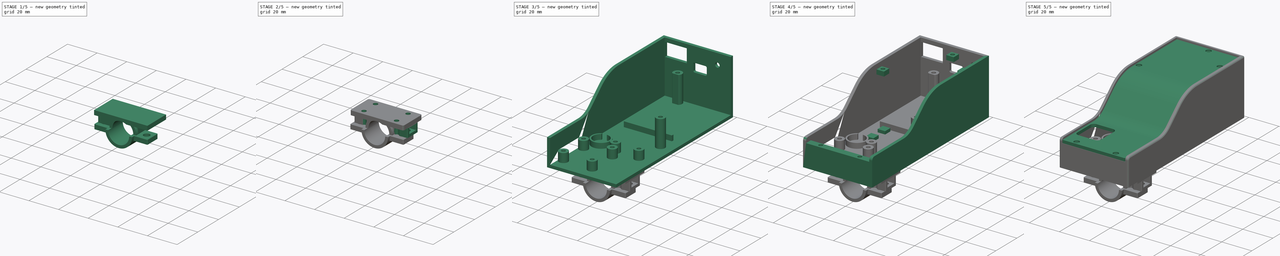
[diagram: build sequence overview — one tinted view per stage of 5, left to right]
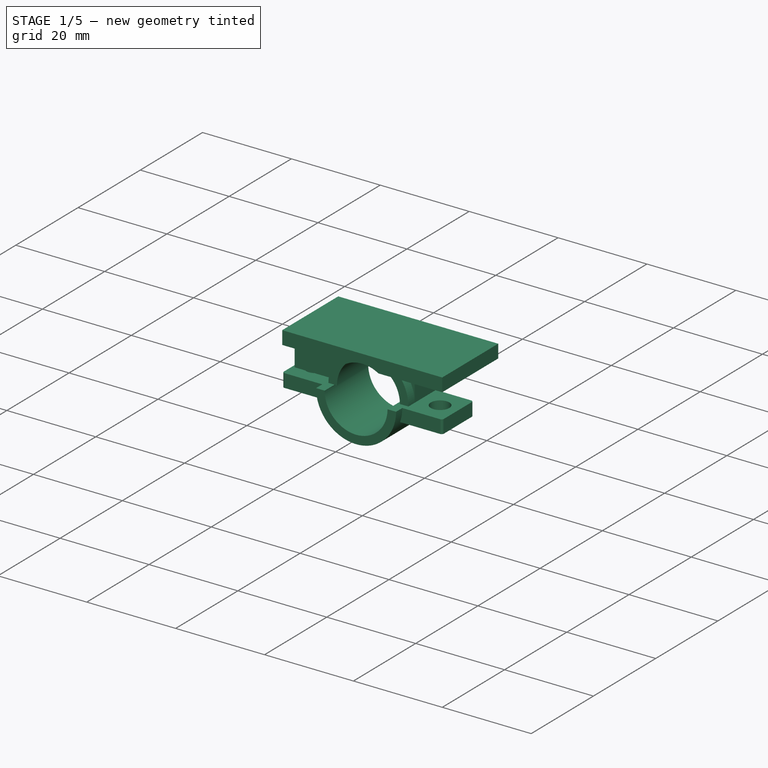
[diagram: stage 1 of 5 — iso view after this stage's code; geometry added in this stage tinted green]
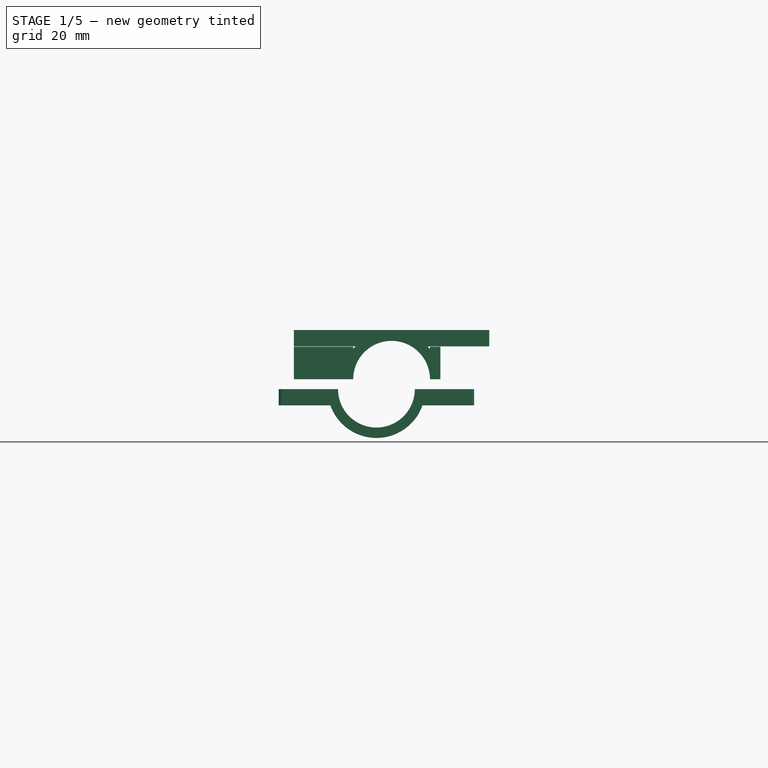
[diagram: stage 1 of 5 — front view after this stage's code; geometry added in this stage tinted green]
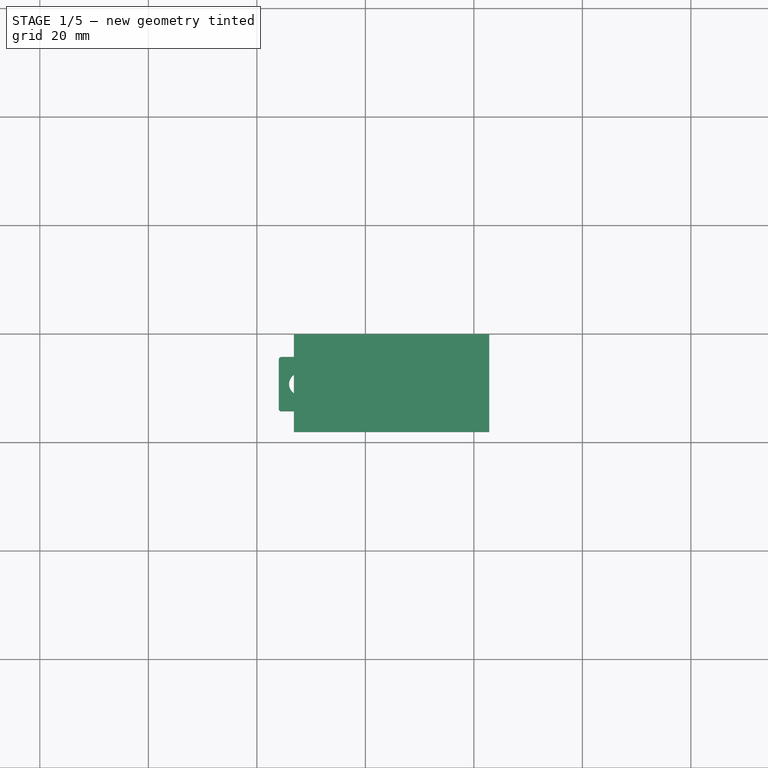
[diagram: stage 1 of 5 — top view after this stage's code; geometry added in this stage tinted green]
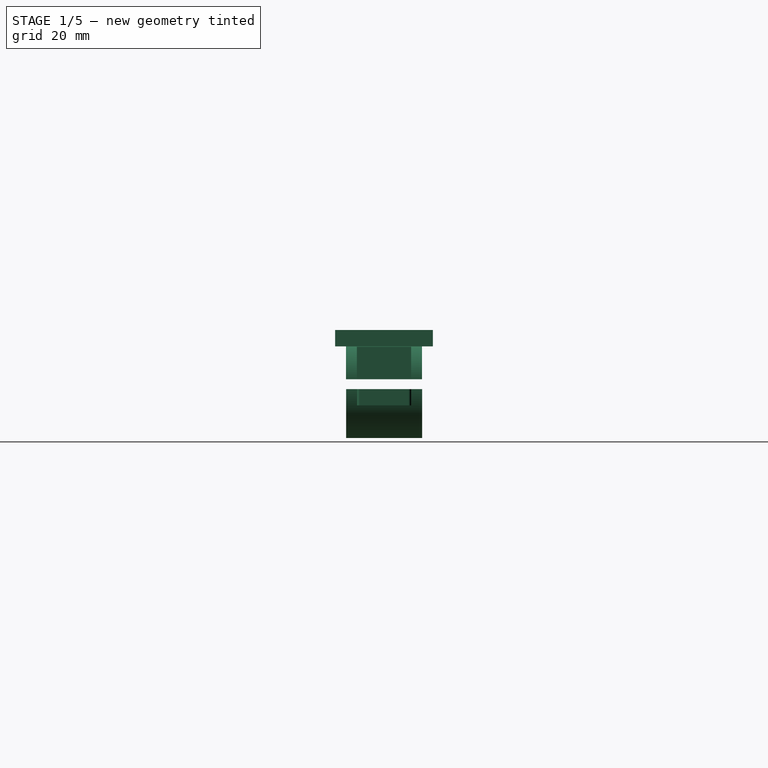
[diagram: stage 1 of 5 — right view after this stage's code; geometry added in this stage tinted green]
FCSTD DOCUMENT  (FreeCAD 1.0R39109 (Git))
Label: case-stick-final
License: All rights reserved
LicenseURL: https://en.wikipedia.org/wiki/All_rights_reserved
objects: Part::Feature×151, Sketcher::SketchObject×41, PartDesign::Pad×24, App::Part×22, PartDesign::Pocket×10, PartDesign::Fillet×9, PartDesign::Hole×7, PartDesign::Body×5, PartDesign::ShapeBinder×4, Image::ImagePlane×3, PartDesign::Chamfer×3, App::TextDocument×1
note: 401 computed .brp shape members not serialized (recipe doc carries the construction recipe); baked Part::Feature solids carry a one-line shape summary decoded from their .brp

FEATURE [PartDesign::Body] Body002  label="CUBO_MODEL"
  AllowCompound = false
  Group = -> [CopyPocket005,Sketch025,Pad017]
  Origin = -> Origin025
  Placement = pos=(0,0,5.45) rot=(0,0,1;0rad)
  Tip = -> Pad017
FEATURE [Sketcher::SketchObject] Sketch044
  ArcFitTolerance = 1e-06
  FullyConstrained = false
  MakeInternals = false
  MapMode = 5
  sketch-geometry (32):
    g0: LineSegment StartX=-8.96 StartY=11.3227 StartZ=0 EndX=-8.96 EndY=6.32271 EndZ=0
    g1: LineSegment StartX=-8.96 StartY=6.32271 StartZ=0 EndX=-3.96 EndY=6.32271 EndZ=0
    g2: LineSegment StartX=-3.96 StartY=6.32271 StartZ=0 EndX=-3.96 EndY=11.3227 EndZ=0
    g3: LineSegment StartX=-3.96 StartY=11.3227 StartZ=0 EndX=-8.96 EndY=11.3227 EndZ=0
    g4: LineSegment StartX=-31 StartY=11.2772 StartZ=0 EndX=-31 EndY=6.27725 EndZ=0
    g5: LineSegment StartX=-31 StartY=6.27725 StartZ=0 EndX=-26 EndY=6.27725 EndZ=0
    g6: LineSegment StartX=-26 StartY=6.27725 StartZ=0 EndX=-26 EndY=11.2772 EndZ=0
    g7: LineSegment StartX=-26 StartY=11.2772 StartZ=0 EndX=-31 EndY=11.2772 EndZ=0
    g8: LineSegment StartX=-30.97 StartY=0.133687 StartZ=0 EndX=-30.97 EndY=-4.86631 EndZ=0
    g9: LineSegment StartX=-30.97 StartY=-4.86631 StartZ=0 EndX=-25.97 EndY=-4.86631 EndZ=0
    g10: LineSegment StartX=-25.97 StartY=-4.86631 StartZ=0 EndX=-25.97 EndY=0.133687 EndZ=0
    g11: LineSegment StartX=-25.97 StartY=0.133687 StartZ=0 EndX=-30.97 EndY=0.133687 EndZ=0
    g12: LineSegment StartX=-8.93 StartY=0.25174 StartZ=0 EndX=-8.93 EndY=-4.74826 EndZ=0
    g13: LineSegment StartX=-8.93 StartY=-4.74826 StartZ=0 EndX=-3.93 EndY=-4.74826 EndZ=0
    g14: LineSegment StartX=-3.93 StartY=-4.74826 StartZ=0 EndX=-3.93 EndY=0.25174 EndZ=0
    g15: LineSegment StartX=-3.93 StartY=0.25174 StartZ=0 EndX=-8.93 EndY=0.25174 EndZ=0
    g16: LineSegment StartX=-9.01 StartY=-28.0865 StartZ=0 EndX=-9.01 EndY=-33.0865 EndZ=0
    g17: LineSegment StartX=-9.01 StartY=-33.0865 StartZ=0 EndX=-4.01 EndY=-33.0865 EndZ=0
    g18: LineSegment StartX=-4.01 StartY=-33.0865 StartZ=0 EndX=-4.01 EndY=-28.0865 EndZ=0
    g19: LineSegment StartX=-4.01 StartY=-28.0865 StartZ=0 EndX=-9.01 EndY=-28.0865 EndZ=0
    g20: LineSegment StartX=-31.05 StartY=-28.132 StartZ=0 EndX=-31.05 EndY=-33.132 EndZ=0
    g21: LineSegment StartX=-31.05 StartY=-33.132 StartZ=0 EndX=-26.05 EndY=-33.132 EndZ=0
    g22: LineSegment StartX=-26.05 StartY=-33.132 StartZ=0 EndX=-26.05 EndY=-28.132 EndZ=0
    g23: LineSegment StartX=-26.05 StartY=-28.132 StartZ=0 EndX=-31.05 EndY=-28.132 EndZ=0
    g24: LineSegment StartX=-31.02 StartY=-39.2755 StartZ=0 EndX=-31.02 EndY=-44.2755 EndZ=0
    g25: LineSegment StartX=-31.02 StartY=-44.2755 StartZ=0 EndX=-26.02 EndY=-44.2755 EndZ=0
    g26: LineSegment StartX=-26.02 StartY=-44.2755 StartZ=0 EndX=-26.02 EndY=-39.2755 EndZ=0
    g27: LineSegment StartX=-26.02 StartY=-39.2755 StartZ=0 EndX=-31.02 EndY=-39.2755 EndZ=0
    g28: LineSegment StartX=-8.98 StartY=-39.1575 StartZ=0 EndX=-8.98 EndY=-44.1575 EndZ=0
    g29: LineSegment StartX=-8.98 StartY=-44.1575 StartZ=0 EndX=-3.98 EndY=-44.1575 EndZ=0
    g30: LineSegment StartX=-3.98 StartY=-44.1575 StartZ=0 EndX=-3.98 EndY=-39.1575 EndZ=0
    g31: LineSegment StartX=-3.98 StartY=-39.1575 StartZ=0 EndX=-8.98 EndY=-39.1575 EndZ=0
  constraints (88):
    c: Coincident(g0,g1)
    c: Coincident(g1,g2)
    c: Coincident(g2,g3)
    c: Coincident(g3,g0)
    c: Vertical(g0)
    c: Vertical(g2)
    c: Horizontal(g1)
    c: Horizontal(g3)
    c: Distance(g0,g2) = 5
    c: Distance(g1,g3) = 5
    c: Coincident(g4,g5)
    c: Coincident(g5,g6)
    c: Coincident(g6,g7)
    c: Coincident(g7,g4)
    c: Vertical(g4)
    c: Vertical(g6)
    c: Horizontal(g5)
    c: Horizontal(g7)
    c: Distance(g4,g6) = 5
    c: Distance(g5,g7) = 5
    c: Coincident(g8,g9)
    c: Coincident(g9,g10)
    c: Coincident(g10,g11)
    c: Coincident(g11,g8)
    c: Vertical(g8)
    c: Vertical(g10)
    c: Horizontal(g9)
    c: Horizontal(g11)
    c: Distance(g8,g10) = 5
    c: Distance(g9,g11) = 5
    c: Coincident(g12,g13)
    c: Coincident(g13,g14)
    c: Coincident(g14,g15)
    c: Coincident(g15,g12)
    c: Vertical(g12)
    c: Vertical(g14)
    c: Horizontal(g13)
    c: Horizontal(g15)
    c: Distance(g12,g14) = 5
    c: Distance(g13,g15) = 5
    c: Coincident(g16,g17)
    c: Coincident(g17,g18)
    c: Coincident(g18,g19)
    c: Coincident(g19,g16)
    c: Vertical(g16)
    c: Vertical(g18)
    c: Horizontal(g17)
    c: Horizontal(g19)
    c: Distance(g16,g18) = 5
    c: Distance(g17,g19) = 5
    c: Coincident(g20,g21)
    c: Coincident(g21,g22)
    c: Coincident(g22,g23)
    c: Coincident(g23,g20)
    c: Vertical(g20)
    c: Vertical(g22)
    c: Horizontal(g21)
    c: Horizontal(g23)
    c: Distance(g20,g22) = 5
    c: Distance(g21,g23) = 5
    c: Coincident(g24,g25)
    c: Coincident(g25,g26)
    c: Coincident(g26,g27)
    c: Coincident(g27,g24)
    c: Vertical(g24)
    c: Vertical(g26)
    c: Horizontal(g25)
    c: Horizontal(g27)
    c: Distance(g24,g26) = 5
    c: Distance(g25,g27) = 5
    c: Coincident(g28,g29)
    c: Coincident(g29,g30)
    c: Coincident(g30,g31)
    c: Coincident(g31,g28)
    c: Vertical(g28)
    c: Vertical(g30)
    c: Horizontal(g29)
    c: Horizontal(g31)
    c: Distance(g28,g30) = 5
    c: Distance(g29,g31) = 5
    c: Distance(g0,g6) = 17.04
    c: Distance(g12,g10) = 17.04
    c: Distance(g-2,g6) = 26
    c: Distance(g-2,g10) = 25.97
    c: Distance(g16,g22) = 17.04
    c: Distance(g28,g26) = 17.04
    c: Distance(g-2,g22) = 26.05
    c: Distance(g-2,g26) = 26.02
FEATURE [PartDesign::ShapeBinder] CopyPad022
  Placement = pos=(0,0,-2) rot=(0,0,1;0rad)
  TraceSupport = false
FEATURE [Sketcher::SketchObject] Sketch048
  ArcFitTolerance = 1e-06
  AttachmentSupport = -> [CopyPad022]
  ExternalGeometry = -> [CopyPad022]
  FullyConstrained = false
  MakeInternals = false
  MapMode = 5
  Placement = pos=(0,0,-2) rot=(1,0,0;3.14159rad)
  sketch-geometry (4):
    g0: LineSegment StartX=-33.1669 StartY=38.3848 StartZ=0 EndX=-33.1669 EndY=20.3848 EndZ=0
    g1: LineSegment StartX=-33.1669 StartY=20.3848 StartZ=0 EndX=2.8331 EndY=20.3848 EndZ=0
    g2: LineSegment StartX=2.8331 StartY=20.3848 StartZ=0 EndX=2.8331 EndY=38.3848 EndZ=0
    g3: LineSegment StartX=2.8331 StartY=38.3848 StartZ=0 EndX=-33.1669 EndY=38.3848 EndZ=0
  constraints (11):
    c: Coincident(g0,g1)
    c: Coincident(g1,g2)
    c: Coincident(g2,g3)
    c: Coincident(g3,g0)
    c: Vertical(g0)
    c: Vertical(g2)
    c: Horizontal(g1)
    c: Horizontal(g3)
    c: DistanceY(g0,g0) = 18
    c: DistanceX(g3,g3) = 36
    c: Distance(g-5,g3) = 12
FEATURE [PartDesign::Pad] Pad032
  Direction = (0,0,-1)
  Length = 3
  Length2 = 10
  Placement = pos=(0,0,-2) rot=(0,0,1;0rad)
  Profile = -> Sketch048
  ReferenceAxis = -> Sketch048 [N_Axis]
  Refine = true
  Suppressed = false
  Type = 0
FEATURE [Sketcher::SketchObject] Sketch049
  ArcFitTolerance = 1e-06
  AttachmentSupport = -> [Pad032]
  ExternalGeometry = -> [Pad032]
  FullyConstrained = true
  MakeInternals = false
  MapMode = 5
  Placement = pos=(0,-20.3848,-2) rot=(0,0.707107,0.707107;3.14159rad)
  sketch-geometry (2):
    g0: Circle CenterX=15.1669 CenterY=-9.075 CenterZ=0 NormalX=0 NormalY=0 NormalZ=1 AngleXU=0 Radius=7.075
    g1: GeomPoint [constr] X=15.1669 Y=-3 Z=0
  constraints (4):
    c: Diameter(g0) = 14.15
    c: Distance(g0,g-1) = 2
    c: Symmetric(g-5,g-5,g1)
    c: Vertical(g1,g0)
FEATURE [PartDesign::Pocket] Pocket009
  BaseFeature = -> Pad032
  Direction = (0,-1,2e-16)
  Length = 5
  Length2 = 5
  Placement = pos=(0,0,-2) rot=(0,0,1;0rad)
  Profile = -> Sketch049
  ReferenceAxis = -> Sketch049 [N_Axis]
  Refine = true
  Suppressed = false
  Type = 1
FEATURE [Sketcher::SketchObject] Sketch050
  ArcFitTolerance = 1e-06
  AttachmentSupport = -> [Pocket009]
  ExternalGeometry = -> [Pocket009]
  FullyConstrained = false
  MakeInternals = false
  MapMode = 5
  Placement = pos=(0,-38.3848,-2) rot=(1,0,0;1.5708rad)
  sketch-geometry (6):
    g0: ArcOfCircle CenterX=-15.1669 CenterY=-9.075 CenterZ=0 NormalX=0 NormalY=0 NormalZ=1 AngleXU=0 Radius=7.075 StartAngle=6.28318 EndAngle=9.42478
    g1: GeomPoint X=-31.1136 Y=-3 Z=0
    g2: GeomPoint [constr] X=-15.1669 Y=-3 Z=0
    g3: ArcOfCircle CenterX=-15.1669 CenterY=-9.075 CenterZ=0 NormalX=0 NormalY=0 NormalZ=1 AngleXU=0 Radius=9 StartAngle=2.31581e-05 EndAngle=3.14159
    g4: LineSegment StartX=-24.1669 StartY=-9.075 StartZ=0 EndX=-22.2419 EndY=-9.075 EndZ=0
    g5: LineSegment StartX=-8.0919 StartY=-9.07504 StartZ=0 EndX=-6.1669 EndY=-9.07479 EndZ=0
  constraints (14):
    c: Diameter(g0) = 14.15
    c: Distance(g0,g-1) = 2
    c: Horizontal(g2,g1)
    c: Symmetric(g-3,g-4,g2)
    c: Vertical(g0,g2)
    c: Diameter(g3) = 18
    c: Coincident(g3,g0)
    c: Horizontal(g4)
    c: PointOnObject(g0,g4)
    c: PointOnObject(g0,g5)
    c: Coincident(g4,g0)
    c: PointOnObject(g5,g0)
    c: Coincident(g4,g3)
    c: Coincident(g5,g3)
FEATURE [PartDesign::Pad] Pad033
  BaseFeature = -> Pocket009
  Direction = (0,-1,2e-16)
  Length = 16
  Length2 = -2
  Placement = pos=(0,0,-2) rot=(0,0,1;0rad)
  Profile = -> Sketch050
  ReferenceAxis = -> Sketch050 [N_Axis]
  Refine = true
  Reversed = true
  Suppressed = false
  Type = 4
FEATURE [Sketcher::SketchObject] Sketch051
  ArcFitTolerance = 1e-06
  AttachmentSupport = -> [Pad033]
  ExternalGeometry = -> [Pad033]
  FullyConstrained = true
  MakeInternals = false
  MapMode = 5
  Placement = pos=(0,-2e-15,-11.075) rot=(1,0,0;3.14159rad)
  sketch-geometry (8):
    g0: LineSegment StartX=-22.2419 StartY=34.3848 StartZ=0 EndX=-24.1669 EndY=34.3848 EndZ=0
    g1: LineSegment StartX=-24.1669 StartY=34.3848 StartZ=0 EndX=-24.1669 EndY=24.3848 EndZ=0
    g2: LineSegment StartX=-24.1669 StartY=24.3848 StartZ=0 EndX=-22.2419 EndY=24.3848 EndZ=0
    g3: LineSegment StartX=-22.2419 StartY=24.3848 StartZ=0 EndX=-22.2419 EndY=34.3848 EndZ=0
    g4: LineSegment StartX=-6.1669 StartY=34.3848 StartZ=0 EndX=-8.0919 EndY=34.3848 EndZ=0
    g5: LineSegment StartX=-8.0919 StartY=34.3848 StartZ=0 EndX=-8.0919 EndY=24.3848 EndZ=0
    g6: LineSegment StartX=-8.0919 StartY=24.3848 StartZ=0 EndX=-6.1669 EndY=24.3848 EndZ=0
    g7: LineSegment StartX=-6.1669 StartY=24.3848 StartZ=0 EndX=-6.1669 EndY=34.3848 EndZ=0
  constraints (24):
    c: Coincident(g0,g1)
    c: Coincident(g1,g2)
    c: Coincident(g2,g3)
    c: Coincident(g3,g0)
    c: Horizontal(g0)
    c: Horizontal(g2)
    c: Vertical(g1)
    c: Vertical(g3)
    c: Coincident(g4,g5)
    c: Coincident(g5,g6)
    c: Coincident(g6,g7)
    c: Coincident(g7,g4)
    c: Horizontal(g4)
    c: Horizontal(g6)
    c: Vertical(g5)
    c: Vertical(g7)
    c: PointOnObject(g4,g-7)
    c: PointOnObject(g4,g-8)
    c: Distance(g-3,g0) = 2
    c: Distance(g-4,g2) = 2
    c: Vertical(g0,g-5)
    c: Vertical(g0,g-6)
    c: DistanceY(g5,g5) = 10
    c: Distance(g-3,g4) = 2
FEATURE [PartDesign::Pad] Pad034
  BaseFeature = -> Pad033
  Direction = (0,0,-1)
  Length = 6
  Length2 = 10
  Placement = pos=(0,0,-2) rot=(0,0,1;0rad)
  Profile = -> Sketch051
  ReferenceAxis = -> Sketch051 [N_Axis]
  Refine = true
  Reversed = true
  Suppressed = false
  Type = 0
FEATURE [Sketcher::SketchObject] Sketch052
  ArcFitTolerance = 1e-06
  AttachmentSupport = -> [Pad034]
  ExternalGeometry = -> [Pad034]
  FullyConstrained = false
  MakeInternals = false
  MapMode = 5
  Placement = pos=(-24.1669,0,-2) rot=(0.57735,-0.57735,-0.57735;2.0944rad)
  sketch-geometry (4):
    g0: LineSegment StartX=24.3848 StartY=-3.075 StartZ=0 EndX=24.3848 EndY=-9.075 EndZ=0
    g1: LineSegment StartX=24.3848 StartY=-9.075 StartZ=0 EndX=34.3848 EndY=-9.075 EndZ=0
    g2: LineSegment StartX=34.3848 StartY=-9.075 StartZ=0 EndX=34.3848 EndY=-3.075 EndZ=0
    g3: LineSegment StartX=34.3848 StartY=-3.075 StartZ=0 EndX=24.3848 EndY=-3.075 EndZ=0
  constraints (10):
    c: Coincident(g0,g1)
    c: Coincident(g1,g2)
    c: Coincident(g2,g3)
    c: Coincident(g3,g0)
    c: Vertical(g0)
    c: Vertical(g2)
    c: Horizontal(g1)
    c: Horizontal(g3)
    c: Coincident(g0,g-3)
    c: DistanceX(g1,g1) = 10
FEATURE [PartDesign::Pad] Pad035
  BaseFeature = -> Pad034
  Direction = (-1,0,0)
  Length = 9
  Length2 = 10
  Placement = pos=(0,0,-2) rot=(0,0,1;0rad)
  Profile = -> Sketch052
  ReferenceAxis = -> Sketch052 [N_Axis]
  Refine = true
  Suppressed = false
  Type = 0
FEATURE [PartDesign::ShapeBinder] CopyPad023
  Placement = pos=(0,0,-2) rot=(0,0,1;0rad)
  TraceSupport = false
FEATURE [Sketcher::SketchObject] Sketch057
  ArcFitTolerance = 1e-06
  AttachmentSupport = -> [CopyPad023]
  FullyConstrained = false
  MakeInternals = false
  MapMode = 5
  Placement = pos=(0,-35.3636,-2) rot=(1,0,0;1.5708rad)
  sketch-geometry (5):
    g0: ArcOfCircle CenterX=-17.9603 CenterY=-10.8956 CenterZ=0 NormalX=0 NormalY=0 NormalZ=1 AngleXU=0 Radius=7.075 StartAngle=3.14159 EndAngle=6.28319
    g1: GeomPoint [constr] X=-18.1756 Y=4 Z=0
    g2: ArcOfCircle CenterX=-17.9603 CenterY=-10.8956 CenterZ=0 NormalX=0 NormalY=0 NormalZ=1 AngleXU=0 Radius=9 StartAngle=3.14159 EndAngle=6.28319
    g3: LineSegment StartX=-26.9603 StartY=-10.8956 StartZ=0 EndX=-25.0353 EndY=-10.8956 EndZ=0
    g4: LineSegment StartX=-10.8853 StartY=-10.8956 StartZ=0 EndX=-8.96031 EndY=-10.8956 EndZ=0
  constraints (12):
    c: Diameter(g0) = 14.15
    c: Diameter(g2) = 18
    c: Coincident(g2,g0)
    c: Horizontal(g3)
    c: PointOnObject(g0,g3)
    c: PointOnObject(g0,g4)
    c: Coincident(g3,g0)
    c: PointOnObject(g4,g0)
    c: Coincident(g3,g2)
    c: Coincident(g4,g2)
    c: Horizontal(g4)
    c: Distance(g2,g2) = 18
FEATURE [PartDesign::Pad] Pad037
  Direction = (0,-1,2e-16)
  Length = 13
  Length2 = 1
  Placement = pos=(0,0,-2) rot=(0,0,1;0rad)
  Profile = -> Sketch057
  ReferenceAxis = -> Sketch057 [N_Axis]
  Refine = true
  Reversed = true
  Suppressed = false
  Type = 4
FEATURE [Sketcher::SketchObject] Sketch058
  ArcFitTolerance = 1e-06
  AttachmentSupport = -> [Pad037]
  ExternalGeometry = -> [Pad037]
  FullyConstrained = true
  MakeInternals = false
  MapMode = 5
  Placement = pos=(0,-2.4e-15,-12.8956) rot=(0,0,1;0rad)
  sketch-geometry (8):
    g0: LineSegment StartX=-25.0303 StartY=-24.3636 StartZ=0 EndX=-26.9603 EndY=-24.3636 EndZ=0
    g1: LineSegment StartX=-26.9603 StartY=-24.3636 StartZ=0 EndX=-26.9603 EndY=-34.3636 EndZ=0
    g2: LineSegment StartX=-26.9603 StartY=-34.3636 StartZ=0 EndX=-25.0303 EndY=-34.3636 EndZ=0
    g3: LineSegment StartX=-25.0303 StartY=-34.3636 StartZ=0 EndX=-25.0303 EndY=-24.3636 EndZ=0
    g4: LineSegment StartX=-8.95531 StartY=-24.3636 StartZ=0 EndX=-10.8853 EndY=-24.3636 EndZ=0
    g5: LineSegment StartX=-10.8853 StartY=-24.3636 StartZ=0 EndX=-10.8853 EndY=-34.3636 EndZ=0
    g6: LineSegment StartX=-10.8853 StartY=-34.3636 StartZ=0 EndX=-8.95531 EndY=-34.3636 EndZ=0
    g7: LineSegment StartX=-8.95531 StartY=-34.3636 StartZ=0 EndX=-8.95531 EndY=-24.3636 EndZ=0
  constraints (24):
    c: Coincident(g0,g1)
    c: Coincident(g1,g2)
    c: Coincident(g2,g3)
    c: Coincident(g3,g0)
    c: Coincident(g4,g5)
    c: Coincident(g5,g6)
    c: Coincident(g6,g7)
    c: Coincident(g7,g4)
    c: Vertical(g7)
    c: Vertical(g5)
    c: Horizontal(g4)
    c: Horizontal(g6)
    c: DistanceX(g4,g4) = 1.93
    c: DistanceY(g7,g7) = 10
    c: PointOnObject(g4,g-3)
    c: DistanceY(g1,g1) = 10
    c: DistanceX(g0,g0) = 1.93
    c: DistanceX(g2,g2) = 1.93
    c: DistanceY(g3,g3) = 10
    c: PointOnObject(g0,g-6)
    c: PointOnObject(g1,g-6)
    c: Horizontal(g0)
    c: Distance(g-8,g0) = 2
    c: Distance(g-5,g4) = 2
FEATURE [PartDesign::Pad] Pad038
  BaseFeature = -> Pad037
  Direction = (0,0,1)
  Length = 3
  Length2 = 10
  Placement = pos=(0,0,-2) rot=(0,0,1;0rad)
  Profile = -> Sketch058
  ReferenceAxis = -> Sketch058 [N_Axis]
  Refine = true
  Reversed = true
  Suppressed = false
  Type = 0
FEATURE [Sketcher::SketchObject] Sketch059
  ArcFitTolerance = 1e-06
  AttachmentSupport = -> [Pad038]
  ExternalGeometry = -> [Pad038]
  FullyConstrained = true
  MakeInternals = false
  MapMode = 5
  Placement = pos=(-26.9603,0,-2) rot=(0.57735,-0.57735,-0.57735;2.0944rad)
  sketch-geometry (4):
    g0: LineSegment StartX=34.3636 StartY=-10.8956 StartZ=0 EndX=24.3636 EndY=-10.8956 EndZ=0
    g1: LineSegment StartX=24.3636 StartY=-10.8956 StartZ=0 EndX=24.3636 EndY=-13.8956 EndZ=0
    g2: LineSegment StartX=24.3636 StartY=-13.8956 StartZ=0 EndX=34.3636 EndY=-13.8956 EndZ=0
    g3: LineSegment StartX=34.3636 StartY=-13.8956 StartZ=0 EndX=34.3636 EndY=-10.8956 EndZ=0
  constraints (10):
    c: Coincident(g0,g1)
    c: Coincident(g1,g2)
    c: Coincident(g2,g3)
    c: Coincident(g3,g0)
    c: Horizontal(g0)
    c: Horizontal(g2)
    c: Vertical(g1)
    c: Vertical(g3)
    c: Coincident(g0,g-3)
    c: Coincident(g1,g-4)
FEATURE [PartDesign::Pad] Pad039
  BaseFeature = -> Pad038
  Direction = (-1,0,0)
  Length = 9
  Length2 = 10
  Placement = pos=(0,0,-2) rot=(0,0,1;0rad)
  Profile = -> Sketch059
  ReferenceAxis = -> Sketch059 [N_Axis]
  Refine = true
  Suppressed = false
  Type = 0
FEATURE [Sketcher::SketchObject] Sketch060
  ArcFitTolerance = 1e-06
  AttachmentSupport = -> [Pad039]
  ExternalGeometry = -> [Pad039]
  FullyConstrained = true
  MakeInternals = false
  MapMode = 5
  Placement = pos=(-8.95531,0,-2) rot=(0.57735,0.57735,0.57735;2.0944rad)
  sketch-geometry (4):
    g0: LineSegment StartX=-34.3636 StartY=-10.8956 StartZ=0 EndX=-34.3636 EndY=-13.8956 EndZ=0
    g1: LineSegment StartX=-34.3636 StartY=-13.8956 StartZ=0 EndX=-24.3636 EndY=-13.8956 EndZ=0
    g2: LineSegment StartX=-24.3636 StartY=-13.8956 StartZ=0 EndX=-24.3636 EndY=-10.8956 EndZ=0
    g3: LineSegment StartX=-24.3636 StartY=-10.8956 StartZ=0 EndX=-34.3636 EndY=-10.8956 EndZ=0
  constraints (10):
    c: Coincident(g0,g1)
    c: Coincident(g1,g2)
    c: Coincident(g2,g3)
    c: Coincident(g3,g0)
    c: Vertical(g0)
    c: Vertical(g2)
    c: Horizontal(g1)
    c: Horizontal(g3)
    c: Coincident(g0,g-4)
    c: Coincident(g1,g-6)
FEATURE [PartDesign::Pad] Pad040
  BaseFeature = -> Pad039
  Direction = (1,0,0)
  Length = 9
  Length2 = 10
  Placement = pos=(0,0,-2) rot=(0,0,1;0rad)
  Profile = -> Sketch060
  ReferenceAxis = -> Sketch060 [N_Axis]
  Refine = true
  Suppressed = false
  Type = 0
FEATURE [Sketcher::SketchObject] Sketch070
  ArcFitTolerance = 1e-06
  AttachmentSupport = -> [Pad040]
  ExternalGeometry = -> [Pad040]
  FullyConstrained = true
  MakeInternals = false
  MapMode = 5
  Placement = pos=(0,0,-15.8956) rot=(1,0,0;3.14159rad)
  sketch-geometry (2):
    g0: Circle CenterX=-31.9603 CenterY=29.3636 CenterZ=0 NormalX=0 NormalY=0 NormalZ=1 AngleXU=0 Radius=1
    g1: Circle CenterX=-3.95531 CenterY=29.3636 CenterZ=0 NormalX=0 NormalY=0 NormalZ=1 AngleXU=0 Radius=1
  constraints (6):
    c: Diameter(g0) = 2
    c: Distance(g0,g-5) = 4
    c: Distance(g0,g-3) = 5
    c: Diameter(g1) = 2
    c: Distance(g1,g-6) = 5
    c: Distance(g1,g-7) = 4
FEATURE [PartDesign::Hole] Hole
  BaseFeature = -> Pad040
  CustomThreadClearance = 0
  Depth = 80.1245
  DepthType = 1
  Diameter = 4.2
  DrillForDepth = false
  DrillPoint = 1
  DrillPointAngle = 118
  HoleCutCountersinkAngle = 90
  HoleCutCustomValues = false
  HoleCutDepth = 0
  HoleCutDiameter = 6.1
  HoleCutType = 0
  ModelThread = false
  Placement = pos=(0,0,-2) rot=(0,0,1;0rad)
  Profile = -> Sketch070
  Refine = true
  Suppressed = false
  Tapered = false
  TaperedAngle = 90
  ThreadClass = 0
  ThreadDepth = 80.1245
  ThreadDepthType = 0
  ThreadDirection = 0
  ThreadFit = 0
  ThreadSize = 0
  ThreadType = 0
  Threaded = false
  UseCustomThreadClearance = false
FEATURE [PartDesign::Body] Body006  label="CLAMP_BODY_UPPER001"
  AllowCompound = false
  Group = -> [CopyPad022,Sketch048,Pad032,Sketch049,Pocket009,Sketch050,Pad033,Sketch051,Pad034,Sketch052,Pad035,Sketch054,Hole004,Sketch067,Pad042,Sketch068,Pocket013,Sketch069,Pocket014,Sketch071,Hole008,Sketch072,Hole009,Sketch073,Hole010,Fillet010,Fillet011,Fillet012,Fillet013]
  Origin = -> Origin029
  Placement = pos=(-2.5,32.65,0) rot=(0,0,1;0rad)
  Tip = -> Fillet013
FEATURE [PartDesign::Fillet] Fillet014
  Base = -> Hole [Edge46,Edge41,Edge3,Edge1]
  BaseFeature = -> Hole
  Placement = pos=(0,0,-2) rot=(0,0,1;0rad)
  Radius = 0.5
  Refine = true
  SupportTransform = false
  Suppressed = false
  UseAllEdges = false
FEATURE [PartDesign::Body] Body007  label="CLAMP_BODY_BOTTOM001"
  AllowCompound = false
  Group = -> [CopyPad023,Sketch057,Pad037,Sketch058,Pad038,Sketch059,Pad039,Sketch060,Pad040,Sketch070,Hole,Fillet014]
  Origin = -> Origin030
  Placement = pos=(0.3,32.6642,1.7) rot=(0,0,1;0rad)
  Tip = -> Fillet014
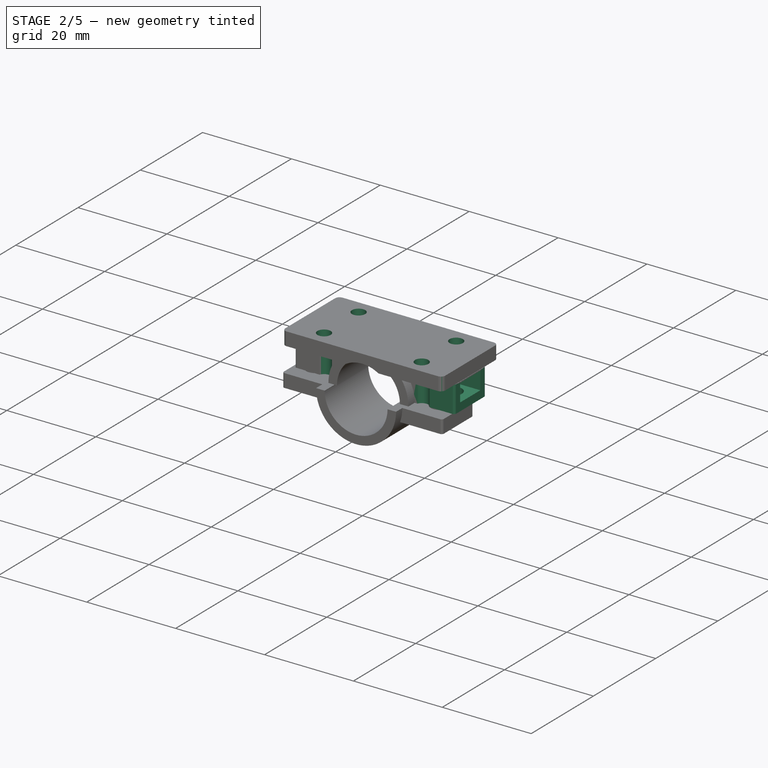
[diagram: stage 2 of 5 — iso view after this stage's code; geometry added in this stage tinted green]
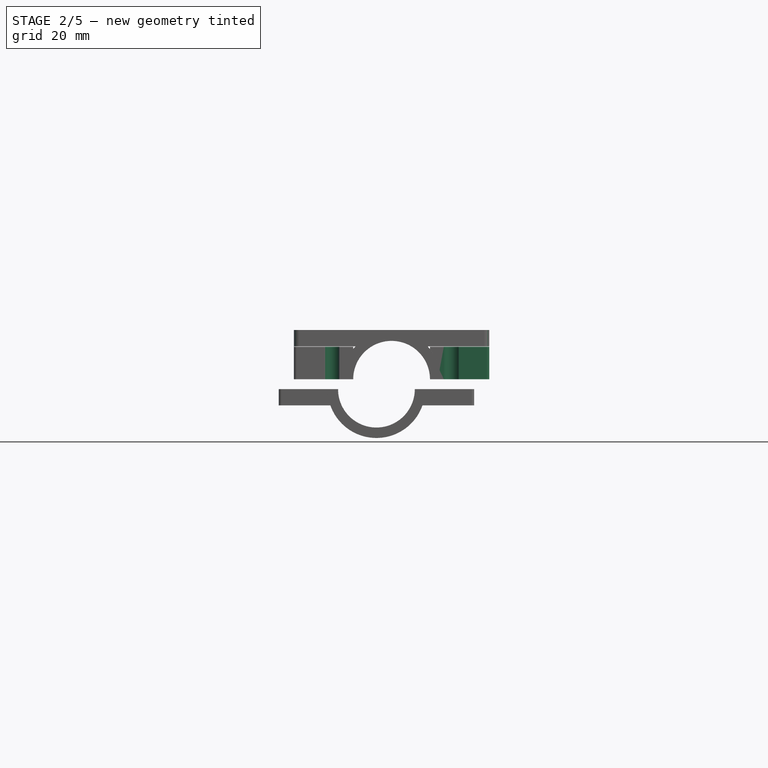
[diagram: stage 2 of 5 — front view after this stage's code; geometry added in this stage tinted green]
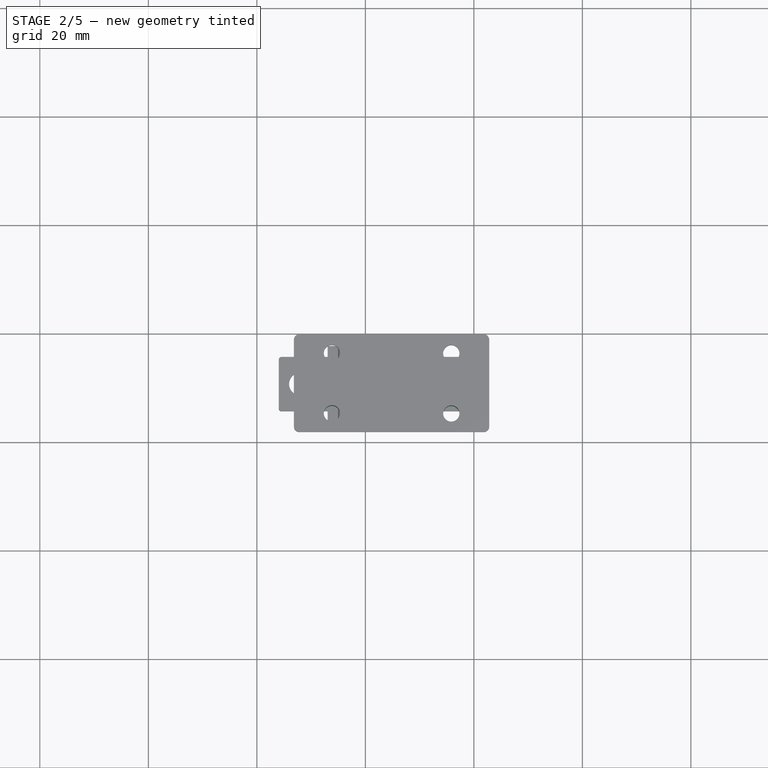
[diagram: stage 2 of 5 — top view after this stage's code; geometry added in this stage tinted green]
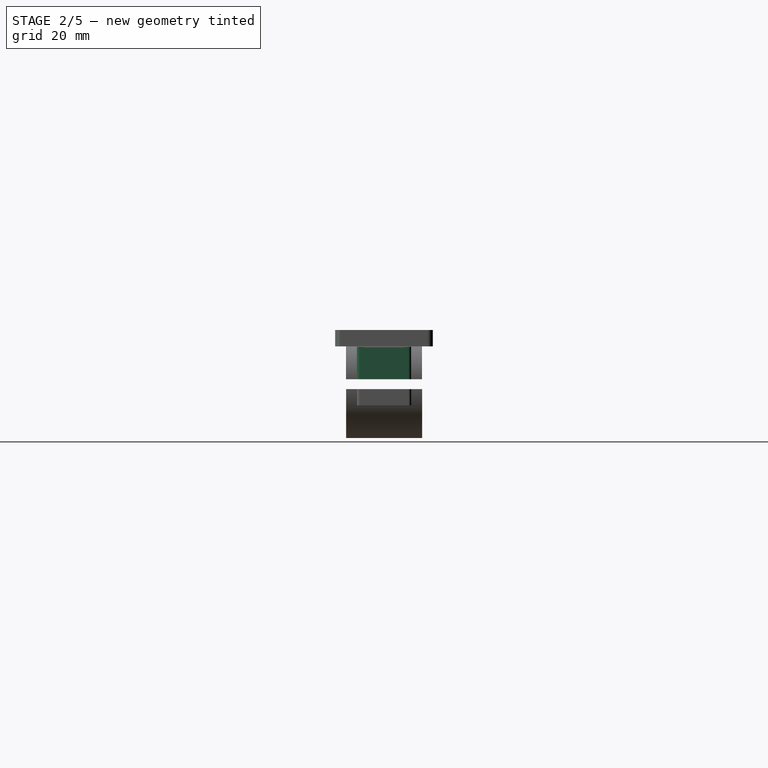
[diagram: stage 2 of 5 — right view after this stage's code; geometry added in this stage tinted green]
FEATURE [Sketcher::SketchObject] Sketch054
  ArcFitTolerance = 1e-06
  FullyConstrained = false
  MakeInternals = false
  MapMode = 5
  Placement = pos=(0,0,-5) rot=(1,0,0;3.14159rad)
  sketch-geometry (4):
    g0: Circle CenterX=-4.15892 CenterY=34.9848 CenterZ=0 NormalX=0 NormalY=0 NormalZ=1 AngleXU=0 Radius=1
    g1: Circle CenterX=-26.1589 CenterY=34.9497 CenterZ=0 NormalX=0 NormalY=0 NormalZ=1 AngleXU=0 Radius=1
    g2: Circle CenterX=-26.1589 CenterY=23.8497 CenterZ=0 NormalX=0 NormalY=0 NormalZ=1 AngleXU=0 Radius=1
    g3: Circle CenterX=-4.15892 CenterY=23.8848 CenterZ=0 NormalX=0 NormalY=0 NormalZ=1 AngleXU=0 Radius=1
  constraints (9):
    c: Diameter(g0) = 2
    c: Diameter(g1) = 2
    c: Diameter(g2) = 2
    c: Diameter(g3) = 2
    c: DistanceX(g1,g0) = 22
    c: DistanceX(g2,g3) = 22
    c: DistanceY(g2,g1) = 11.1
    c: DistanceY(g3,g0) = 11.1
    c: Vertical(g1,g2)
FEATURE [PartDesign::Hole] Hole004
  BaseFeature = -> Pad035
  CustomThreadClearance = 0
  Depth = 83.3444
  DepthType = 1
  Diameter = 2.6
  DrillForDepth = false
  DrillPoint = 1
  DrillPointAngle = 118
  HoleCutCountersinkAngle = 90
  HoleCutCustomValues = false
  HoleCutDepth = 2.34
  HoleCutDiameter = 3
  HoleCutType = 1
  ModelThread = false
  Placement = pos=(0,0,-2) rot=(0,0,1;0rad)
  Profile = -> Sketch054
  Refine = true
  Suppressed = false
  Tapered = false
  TaperedAngle = 90
  ThreadClass = 0
  ThreadDepth = 83.3444
  ThreadDepthType = 0
  ThreadDirection = 0
  ThreadFit = 1
  ThreadSize = 0
  ThreadType = 0
  Threaded = false
  UseCustomThreadClearance = false
FEATURE [PartDesign::Body] Body
  AllowCompound = false
  Group = -> [Sketch,Pad,Sketch001,Pad001,Sketch002,Pocket,Sketch004,Pad003,Sketch005,Pocket001,Sketch006,Pad004,Sketch007,Pad005,Sketch008,Pocket002,Sketch009,Pad006,Sketch010,Pad007,Sketch014,Pad011,Sketch016,Pad013,Fillet,Fillet001,Sketch018,Pad014,Sketch019,Pad015,Sketch020,Pad016,Sketch021,Pocket004,Sketch023,Pocket005,Sketch044,Pad031,Sketch045,Pocket007,Fillet008,Fillet009,Chamfer,Chamfer001,Chamfer002]
  Origin = -> Origin
  Tip = -> Chamfer002
FEATURE [App::TextDocument] Text_document  label="INFOS"
  Text = Os parafusos indicados para fixar os clamps no corpo do case e na baqueta são os 2.5x8. Apesar de eu ter deixado 4 furos (clamp upper), me parece que, apenas dois parafusos são suficientes para fixar a peça ao corpo do case.\n\nPara a fixação das placas internas, utilizei parafusos 2.5x4.
FEATURE [Sketcher::SketchObject] Sketch067
  ArcFitTolerance = 1e-06
  AttachmentSupport = -> [Hole004]
  ExternalGeometry = -> [Hole004]
  FullyConstrained = true
  MakeInternals = false
  MapMode = 5
  Placement = pos=(-6.1669,0,-2) rot=(0.57735,0.57735,0.57735;2.0944rad)
  sketch-geometry (4):
    g0: LineSegment StartX=-34.3848 StartY=-3.075 StartZ=0 EndX=-34.3848 EndY=-9.07479 EndZ=0
    g1: LineSegment StartX=-34.3848 StartY=-9.07479 StartZ=0 EndX=-24.3848 EndY=-9.07479 EndZ=0
    g2: LineSegment StartX=-24.3848 StartY=-9.07479 StartZ=0 EndX=-24.3848 EndY=-3.075 EndZ=0
    g3: LineSegment StartX=-24.3848 StartY=-3.075 StartZ=0 EndX=-34.3848 EndY=-3.075 EndZ=0
  constraints (10):
    c: Coincident(g0,g1)
    c: Coincident(g1,g2)
    c: Coincident(g2,g3)
    c: Coincident(g3,g0)
    c: Vertical(g0)
    c: Vertical(g2)
    c: Horizontal(g1)
    c: Horizontal(g3)
    c: Coincident(g0,g-3)
    c: Coincident(g1,g-4)
FEATURE [PartDesign::Pad] Pad042
  BaseFeature = -> Hole004
  Direction = (1,0,0)
  Length = 9
  Length2 = 10
  Placement = pos=(0,0,-2) rot=(0,0,1;0rad)
  Profile = -> Sketch067
  ReferenceAxis = -> Sketch067 [N_Axis]
  Refine = true
  Suppressed = false
  Type = 0
FEATURE [Sketcher::SketchObject] Sketch068
  ArcFitTolerance = 1e-06
  AttachmentSupport = -> [Pad042]
  ExternalGeometry = -> [Pad042]
  FullyConstrained = true
  MakeInternals = false
  MapMode = 5
  Placement = pos=(-33.1669,0,-2) rot=(0.57735,-0.57735,-0.57735;2.0944rad)
  sketch-geometry (4):
    g0: LineSegment StartX=26.1348 StartY=-3.275 StartZ=0 EndX=26.1348 EndY=-7.275 EndZ=0
    g1: LineSegment StartX=26.1348 StartY=-7.275 StartZ=0 EndX=32.6348 EndY=-7.275 EndZ=0
    g2: LineSegment StartX=32.6348 StartY=-7.275 StartZ=0 EndX=32.6348 EndY=-3.275 EndZ=0
    g3: LineSegment StartX=32.6348 StartY=-3.275 StartZ=0 EndX=26.1348 EndY=-3.275 EndZ=0
  constraints (12):
    c: Coincident(g0,g1)
    c: Coincident(g1,g2)
    c: Coincident(g2,g3)
    c: Coincident(g3,g0)
    c: Vertical(g0)
    c: Vertical(g2)
    c: Horizontal(g1)
    c: Horizontal(g3)
    c: Distance(g0,g2) = 6.5
    c: Distance(g1,g3) = 4
    c: Distance(g-3,g3) = 0.2
    c: Distance(g-7,g0) = 3.75
FEATURE [PartDesign::Pocket] Pocket013
  BaseFeature = -> Pad042
  Direction = (1,0,0)
  Length = 8
  Length2 = 5
  Placement = pos=(0,0,-2) rot=(0,0,1;0rad)
  Profile = -> Sketch068
  ReferenceAxis = -> Sketch068 [N_Axis]
  Refine = true
  Suppressed = false
  Type = 0
FEATURE [Sketcher::SketchObject] Sketch069
  ArcFitTolerance = 1e-06
  AttachmentSupport = -> [Pocket013]
  ExternalGeometry = -> [Pocket013]
  FullyConstrained = true
  MakeInternals = false
  MapMode = 5
  Placement = pos=(2.8331,0,-2) rot=(0.57735,0.57735,0.57735;2.0944rad)
  sketch-geometry (4):
    g0: LineSegment StartX=-32.6348 StartY=-3.275 StartZ=0 EndX=-32.6348 EndY=-7.275 EndZ=0
    g1: LineSegment StartX=-32.6348 StartY=-7.275 StartZ=0 EndX=-26.1348 EndY=-7.275 EndZ=0
    g2: LineSegment StartX=-26.1348 StartY=-7.275 StartZ=0 EndX=-26.1348 EndY=-3.275 EndZ=0
    g3: LineSegment StartX=-26.1348 StartY=-3.275 StartZ=0 EndX=-32.6348 EndY=-3.275 EndZ=0
  constraints (12):
    c: Coincident(g0,g1)
    c: Coincident(g1,g2)
    c: Coincident(g2,g3)
    c: Coincident(g3,g0)
    c: Vertical(g0)
    c: Vertical(g2)
    c: Horizontal(g1)
    c: Horizontal(g3)
    c: Distance(g0,g2) = 6.5
    c: Distance(g1,g3) = 4
    c: Distance(g-3,g3) = 0.2
    c: Distance(g-7,g2) = 3.75
FEATURE [PartDesign::Pocket] Pocket014
  BaseFeature = -> Pocket013
  Direction = (-1,0,0)
  Length = 8
  Length2 = 5
  Placement = pos=(0,0,-2) rot=(0,0,1;0rad)
  Profile = -> Sketch069
  ReferenceAxis = -> Sketch069 [N_Axis]
  Refine = true
  Suppressed = false
  Type = 0
FEATURE [Sketcher::SketchObject] Sketch071
  ArcFitTolerance = 1e-06
  AttachmentSupport = -> [Pocket014]
  ExternalGeometry = -> [Pocket014]
  FullyConstrained = true
  MakeInternals = false
  MapMode = 5
  Placement = pos=(0,0,-11.075) rot=(1,0,0;3.14159rad)
  sketch-geometry (2):
    g0: Circle CenterX=-29.1669 CenterY=29.3848 CenterZ=0 NormalX=0 NormalY=0 NormalZ=1 AngleXU=0 Radius=1
    g1: Circle CenterX=-1.1669 CenterY=29.3848 CenterZ=0 NormalX=0 NormalY=0 NormalZ=1 AngleXU=0 Radius=1
  constraints (6):
    c: Diameter(g0) = 2
    c: Diameter(g1) = 2
    c: Distance(g0,g-4) = 4
    c: Distance(g0,g-3) = 5
    c: Distance(g1,g-5) = 5
    c: Distance(g1,g-6) = 4
FEATURE [PartDesign::Hole] Hole008
  BaseFeature = -> Pocket014
  CustomThreadClearance = 0
  Depth = 3.8
  DepthType = 0
  Diameter = 4.2
  DrillForDepth = false
  DrillPoint = 1
  DrillPointAngle = 118
  HoleCutCountersinkAngle = 90
  HoleCutCustomValues = false
  HoleCutDepth = 0
  HoleCutDiameter = 6.1
  HoleCutType = 0
  ModelThread = false
  Placement = pos=(0,0,-2) rot=(0,0,1;0rad)
  Profile = -> Sketch071
  Refine = true
  Suppressed = false
  Tapered = false
  TaperedAngle = 90
  ThreadClass = 0
  ThreadDepth = 3.8
  ThreadDepthType = 0
  ThreadDirection = 0
  ThreadFit = 0
  ThreadSize = 0
  ThreadType = 0
  Threaded = false
  UseCustomThreadClearance = false
FEATURE [Sketcher::SketchObject] Sketch072
  ArcFitTolerance = 1e-06
  AttachmentSupport = -> [Pad042]
  ExternalGeometry = -> [Pad042]
  FullyConstrained = true
  MakeInternals = false
  MapMode = 5
  Placement = pos=(0,0,-11.0748) rot=(1,0,0;3.14159rad)
  sketch-geometry (4):
    g0: Circle CenterX=-26.1589 CenterY=34.9497 CenterZ=0 NormalX=0 NormalY=0 NormalZ=1 AngleXU=0 Radius=1
    g1: Circle CenterX=-4.15892 CenterY=34.9848 CenterZ=0 NormalX=0 NormalY=0 NormalZ=1 AngleXU=0 Radius=1
    g2: Circle CenterX=-26.1589 CenterY=23.8497 CenterZ=0 NormalX=0 NormalY=0 NormalZ=1 AngleXU=0 Radius=1
    g3: Circle CenterX=-4.15892 CenterY=23.8848 CenterZ=0 NormalX=0 NormalY=0 NormalZ=1 AngleXU=0 Radius=1
  constraints (8):
    c: Diameter(g0) = 2
    c: Coincident(g0,g-3)
    c: Diameter(g1) = 2
    c: Coincident(g1,g-4)
    c: Diameter(g2) = 2
    c: Coincident(g2,g-6)
    c: Diameter(g3) = 2
    c: Coincident(g3,g-5)
FEATURE [PartDesign::Hole] Hole009
  BaseFeature = -> Hole008
  CustomThreadClearance = 0
  Depth = 83.3444
  DepthType = 1
  Diameter = 3
  DrillForDepth = false
  DrillPoint = 1
  DrillPointAngle = 118
  HoleCutCountersinkAngle = 90
  HoleCutCustomValues = false
  HoleCutDepth = 0
  HoleCutDiameter = 6.1
  HoleCutType = 0
  ModelThread = false
  Placement = pos=(0,0,-2) rot=(0,0,1;0rad)
  Profile = -> Sketch072
  Refine = true
  Suppressed = false
  Tapered = false
  TaperedAngle = 90
  ThreadClass = 0
  ThreadDepth = 83.3444
  ThreadDepthType = 0
  ThreadDirection = 0
  ThreadFit = 0
  ThreadSize = 0
  ThreadType = 0
  Threaded = false
  UseCustomThreadClearance = false
FEATURE [Sketcher::SketchObject] Sketch073
  ArcFitTolerance = 1e-06
  AttachmentSupport = -> [Hole008]
  ExternalGeometry = -> [Hole008]
  FullyConstrained = true
  MakeInternals = false
  MapMode = 5
  Placement = pos=(0,0,-11.075) rot=(1,0,0;3.14159rad)
  sketch-geometry (4):
    g0: Circle CenterX=-26.1589 CenterY=34.9497 CenterZ=0 NormalX=0 NormalY=0 NormalZ=1 AngleXU=0 Radius=1
    g1: Circle CenterX=-4.15892 CenterY=34.9848 CenterZ=0 NormalX=0 NormalY=0 NormalZ=1 AngleXU=0 Radius=1
    g2: Circle CenterX=-26.1589 CenterY=23.8497 CenterZ=0 NormalX=0 NormalY=0 NormalZ=1 AngleXU=0 Radius=1
    g3: Circle CenterX=-4.15892 CenterY=23.8848 CenterZ=0 NormalX=0 NormalY=0 NormalZ=1 AngleXU=0 Radius=1
  constraints (8):
    c: Diameter(g0) = 2
    c: Coincident(g0,g-3)
    c: Diameter(g1) = 2
    c: Coincident(g1,g-4)
    c: Diameter(g2) = 2
    c: Coincident(g2,g-6)
    c: Diameter(g3) = 2
    c: Coincident(g3,g-5)
FEATURE [PartDesign::Hole] Hole010
  BaseFeature = -> Hole009
  CustomThreadClearance = 0
  Depth = 83.3444
  DepthType = 1
  Diameter = 3
  DrillForDepth = false
  DrillPoint = 1
  DrillPointAngle = 118
  HoleCutCountersinkAngle = 90
  HoleCutCustomValues = false
  HoleCutDepth = 0
  HoleCutDiameter = 6.1
  HoleCutType = 0
  ModelThread = false
  Placement = pos=(0,0,-2) rot=(0,0,1;0rad)
  Profile = -> Sketch073
  Refine = true
  Suppressed = false
  Tapered = false
  TaperedAngle = 90
  ThreadClass = 0
  ThreadDepth = 83.3444
  ThreadDepthType = 0
  ThreadDirection = 0
  ThreadFit = 0
  ThreadSize = 0
  ThreadType = 0
  Threaded = false
  UseCustomThreadClearance = false
FEATURE [PartDesign::Fillet] Fillet011
  Base = -> Hole010 [Edge9,Edge1,Edge2,Edge11]
  BaseFeature = -> Hole010
  Placement = pos=(0,0,-2) rot=(0,0,1;0rad)
  Radius = 1
  Refine = true
  SupportTransform = false
  Suppressed = false
  UseAllEdges = false
FEATURE [PartDesign::Fillet] Fillet012
  Base = -> Fillet011 [Edge141,Edge142]
  BaseFeature = -> Fillet011
  Placement = pos=(0,0,-2) rot=(0,0,1;0rad)
  Radius = 0.5
  Refine = true
  SupportTransform = false
  Suppressed = false
  UseAllEdges = false
FEATURE [PartDesign::Fillet] Fillet013
  Base = -> Fillet012 [Edge145,Edge143]
  BaseFeature = -> Fillet012
  Placement = pos=(0,0,-2) rot=(0,0,1;0rad)
  Radius = 0.5
  Refine = true
  SupportTransform = false
  Suppressed = false
  UseAllEdges = false
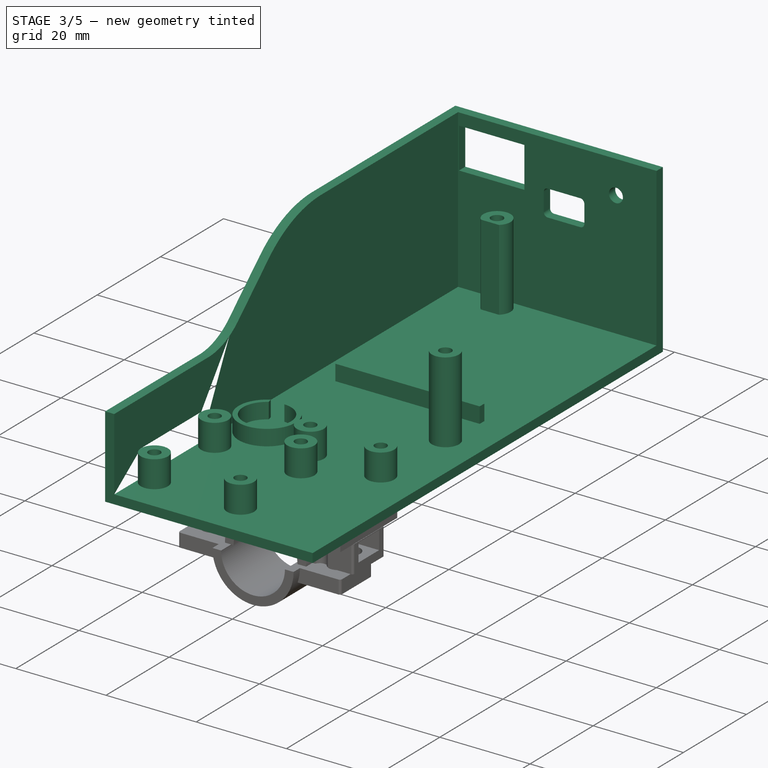
[diagram: stage 3 of 5 — iso view after this stage's code; geometry added in this stage tinted green]
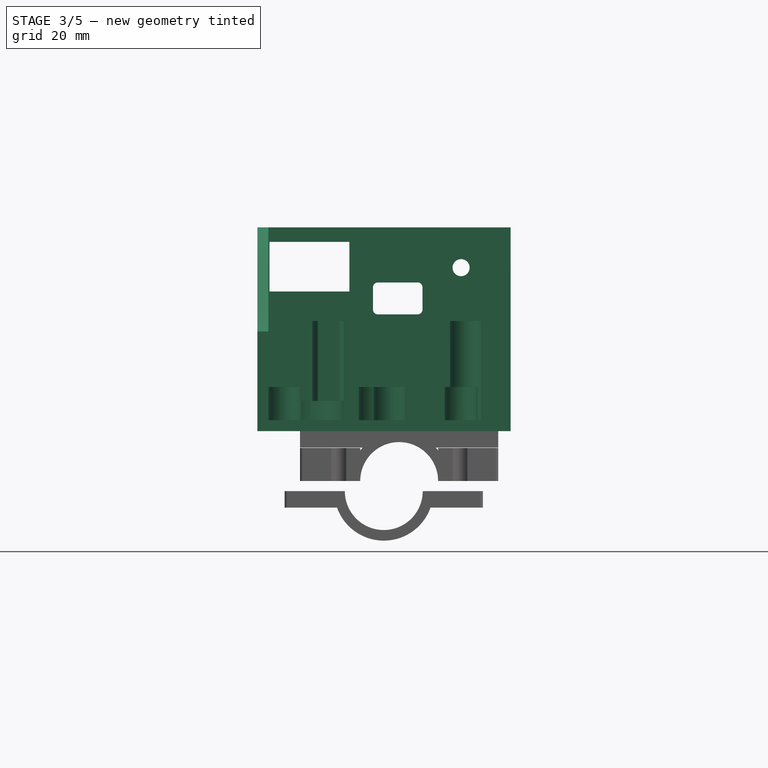
[diagram: stage 3 of 5 — front view after this stage's code; geometry added in this stage tinted green]
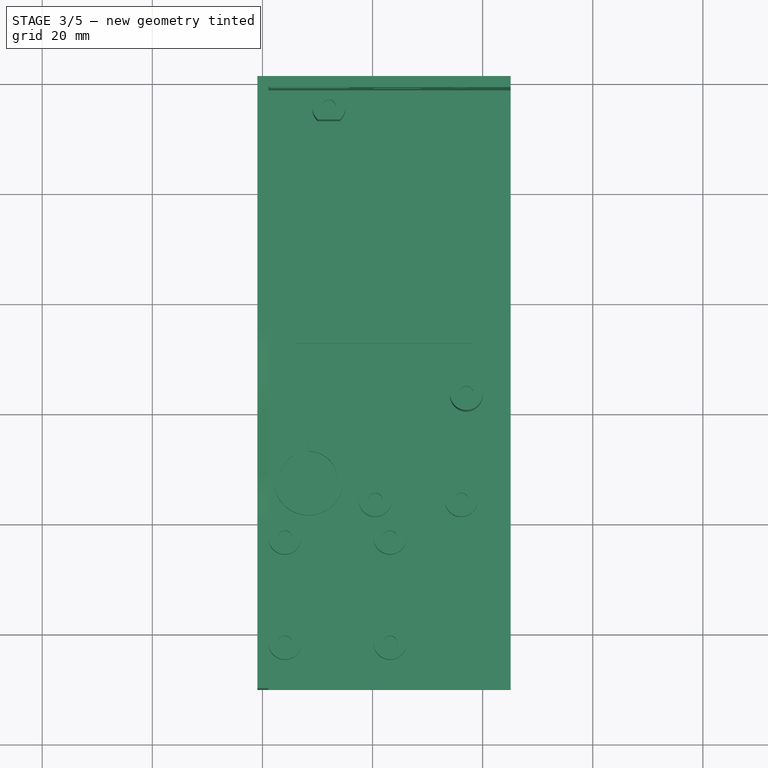
[diagram: stage 3 of 5 — top view after this stage's code; geometry added in this stage tinted green]
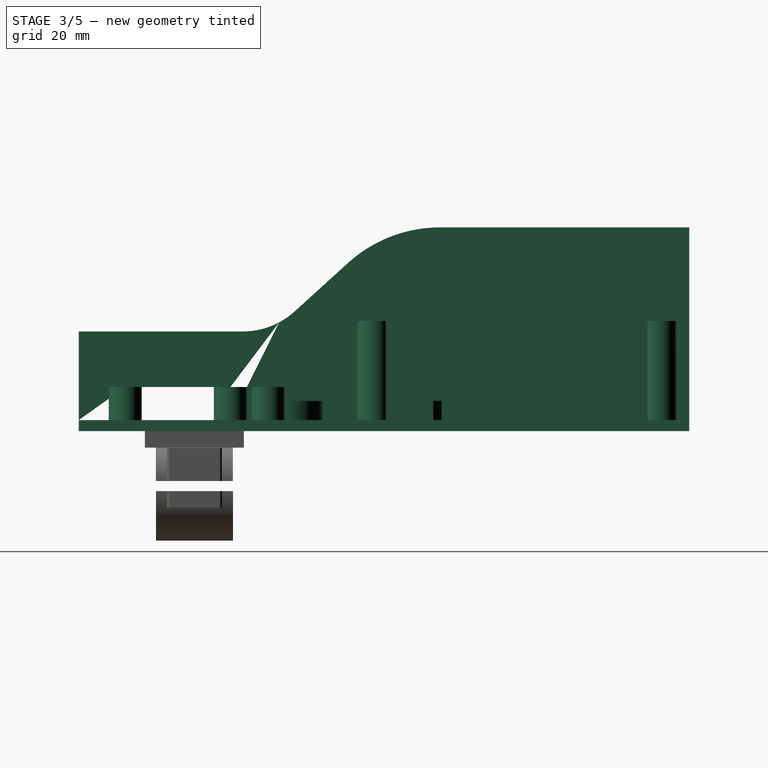
[diagram: stage 3 of 5 — right view after this stage's code; geometry added in this stage tinted green]
FEATURE [Sketcher::SketchObject] Sketch  label="sk_base"
  ArcFitTolerance = 1e-06
  AttachmentSupport = -> [XY_Plane]
  FullyConstrained = false
  MakeInternals = false
  MapMode = 5
  sketch-geometry (4):
    g0: LineSegment StartX=-40.9192 StartY=58.5 StartZ=0 EndX=-40.9192 EndY=-50.3848 EndZ=0
    g1: LineSegment StartX=-40.9192 StartY=-50.3848 StartZ=0 EndX=5.08076 EndY=-50.3848 EndZ=0
    g2: LineSegment StartX=5.08076 StartY=-50.3848 StartZ=0 EndX=5.08076 EndY=58.5 EndZ=0
    g3: LineSegment StartX=5.08076 StartY=58.5 StartZ=0 EndX=-40.9192 EndY=58.5 EndZ=0
  constraints (11):
    c: Coincident(g0,g1)
    c: Coincident(g1,g2)
    c: Coincident(g2,g3)
    c: Coincident(g3,g0)
    c: Vertical(g0)
    c: Vertical(g2)
    c: Horizontal(g1)
    c: Horizontal(g3)
    c: Coincident(g1,g-1)
    c: Distance(g-1,g3) = 58.5
    c: DistanceX(g1,g1) = 46
FEATURE [PartDesign::Pad] Pad  label="BASE"
  Direction = (0,0,1)
  Length = 2
  Length2 = 10
  Profile = -> Sketch
  ReferenceAxis = -> Sketch [N_Axis]
  Refine = true
  Reversed = true
  Suppressed = false
  Type = 0
FEATURE [Sketcher::SketchObject] Sketch001  label="sk_pilares"
  ArcFitTolerance = 1e-06
  AttachmentSupport = -> [Pad]
  FullyConstrained = false
  MakeInternals = false
  MapMode = 5
  sketch-geometry (4):
    g0: ArcOfCircle CenterX=-2.96427 CenterY=3.15006 CenterZ=0 NormalX=0 NormalY=0 NormalZ=1 AngleXU=0 Radius=3 StartAngle=2.30449 EndAngle=7.12028
    g1: ArcOfCircle CenterX=-27.9383 CenterY=55.1501 CenterZ=0 NormalX=0 NormalY=0 NormalZ=1 AngleXU=0 Radius=3 StartAngle=5.44152 EndAngle=10.2664
    g2: LineSegment StartX=-4.97314 StartY=5.37816 StartZ=0 EndX=-0.955412 EndY=5.37816 EndZ=0
    g3: LineSegment StartX=-29.937 StartY=52.9128 StartZ=0 EndX=-25.9397 EndY=52.9128 EndZ=0
  constraints (8):
    c: Diameter(g0) = 6
    c: Diameter(g1) = 6
    c: Horizontal(g2)
    c: Coincident(g2,g0)
    c: Coincident(g2,g0)
    c: Horizontal(g3)
    c: Coincident(g3,g1)
    c: Coincident(g3,g1)
FEATURE [PartDesign::Pad] Pad001
  BaseFeature = -> Pad
  Direction = (0,0,1)
  Length = 18
  Length2 = 10
  Profile = -> Sketch001
  ReferenceAxis = -> Sketch001 [N_Axis]
  Refine = true
  Suppressed = false
  Type = 0
FEATURE [Sketcher::SketchObject] Sketch002  label="sk_furos_menores"
  ArcFitTolerance = 1e-06
  AttachmentSupport = -> [Pad001]
  ExternalGeometry = -> [Pad001]
  FullyConstrained = true
  MakeInternals = false
  MapMode = 5
  Placement = pos=(0,0,18) rot=(0,0,1;0rad)
  sketch-geometry (2):
    g0: Circle CenterX=-27.9383 CenterY=55.1501 CenterZ=0 NormalX=0 NormalY=0 NormalZ=1 AngleXU=0 Radius=1.325
    g1: Circle CenterX=-2.96427 CenterY=3.15006 CenterZ=0 NormalX=0 NormalY=0 NormalZ=1 AngleXU=0 Radius=1.325
  constraints (4):
    c: Coincident(g0,g-3)
    c: Diameter(g0) = 2.65
    c: Diameter(g1) = 2.65
    c: Coincident(g1,g-4)
FEATURE [PartDesign::Pocket] Pocket
  BaseFeature = -> Pad001
  Direction = (0,0,-1)
  Length = 4
  Length2 = 5
  Profile = -> Sketch002
  ReferenceAxis = -> Sketch002 [N_Axis]
  Refine = true
  Suppressed = false
  Type = 0
FEATURE [Sketcher::SketchObject] Sketch004  label="sk_pilares_acel"
  ArcFitTolerance = 1e-06
  ExternalGeometry = -> [Sketch]
  FullyConstrained = false
  MakeInternals = false
  MapMode = 5
  sketch-geometry (7):
    g0: Circle CenterX=-3.9 CenterY=-16 CenterZ=0 NormalX=0 NormalY=0 NormalZ=1 AngleXU=0 Radius=3
    g1: LineSegment [constr] StartX=-39.98 StartY=48.4675 StartZ=0 EndX=-39.98 EndY=17.2549 EndZ=0
    g2: Circle CenterX=-35.9192 CenterY=-22.8459 CenterZ=0 NormalX=0 NormalY=0 NormalZ=1 AngleXU=0 Radius=3
    g3: Circle CenterX=-35.9192 CenterY=-41.9459 CenterZ=0 NormalX=0 NormalY=0 NormalZ=1 AngleXU=0 Radius=3
    g4: Circle CenterX=-19.5 CenterY=-16 CenterZ=0 NormalX=0 NormalY=0 NormalZ=1 AngleXU=0 Radius=3
    g5: Circle CenterX=-16.8192 CenterY=-22.8459 CenterZ=0 NormalX=0 NormalY=0 NormalZ=1 AngleXU=0 Radius=3
    g6: Circle CenterX=-16.8192 CenterY=-41.9459 CenterZ=0 NormalX=0 NormalY=0 NormalZ=1 AngleXU=0 Radius=3
  constraints (15):
    c: Diameter(g0) = 6
    c: Vertical(g1)
    c: Distance(g-2,g1) = 39.98
    c: Diameter(g2) = 6
    c: Diameter(g3) = 6
    c: Diameter(g4) = 6
    c: Vertical(g2,g3)
    c: Distance(g2,g3) = 19.1
    c: Diameter(g5) = 6
    c: Horizontal(g2,g5)
    c: Distance(g2,g-3) = 5
    c: DistanceX(g2,g5) = 19.1
    c: Diameter(g6) = 6
    c: Vertical(g6,g5)
    c: Horizontal(g3,g6)
FEATURE [PartDesign::Pad] Pad003
  BaseFeature = -> Pocket
  Direction = (0,0,1)
  Length = 6
  Length2 = 10
  Profile = -> Sketch004
  ReferenceAxis = -> Sketch004 [N_Axis]
  Refine = true
  Suppressed = false
  Type = 0
FEATURE [Sketcher::SketchObject] Sketch005  label="sk_furos_menores_acel"
  ArcFitTolerance = 1e-06
  AttachmentSupport = -> [Pad003]
  ExternalGeometry = -> [Pad003]
  FullyConstrained = true
  MakeInternals = false
  MapMode = 5
  Placement = pos=(0,0,6) rot=(0,0,1;0rad)
  sketch-geometry (6):
    g0: Circle CenterX=-19.5 CenterY=-16 CenterZ=0 NormalX=0 NormalY=0 NormalZ=1 AngleXU=0 Radius=1.3
    g1: Circle CenterX=-3.9 CenterY=-16 CenterZ=0 NormalX=0 NormalY=0 NormalZ=1 AngleXU=0 Radius=1.3
    g2: Circle CenterX=-35.9192 CenterY=-41.9459 CenterZ=0 NormalX=0 NormalY=0 NormalZ=1 AngleXU=0 Radius=1.3
    g3: Circle CenterX=-35.9192 CenterY=-22.8459 CenterZ=0 NormalX=0 NormalY=0 NormalZ=1 AngleXU=0 Radius=1.3
    g4: Circle CenterX=-16.8192 CenterY=-41.9459 CenterZ=0 NormalX=0 NormalY=0 NormalZ=1 AngleXU=0 Radius=1.3
    g5: Circle CenterX=-16.8192 CenterY=-22.8459 CenterZ=0 NormalX=0 NormalY=0 NormalZ=1 AngleXU=0 Radius=1.3
  constraints (12):
    c: Diameter(g0) = 2.6
    c: Coincident(g0,g-3)
    c: Diameter(g1) = 2.6
    c: Coincident(g1,g-4)
    c: Diameter(g2) = 2.6
    c: Diameter(g3) = 2.6
    c: Coincident(g2,g-5)
    c: Diameter(g4) = 2.6
    c: Diameter(g5) = 2.6
    c: Coincident(g-6,g5)
    c: Coincident(g-7,g4)
    c: Coincident(g3,g-8)
FEATURE [PartDesign::Pocket] Pocket001
  BaseFeature = -> Pad003
  Direction = (0,0,-1)
  Length = 4
  Length2 = 5
  Profile = -> Sketch005
  ReferenceAxis = -> Sketch005 [N_Axis]
  Refine = true
  Suppressed = false
  Type = 0
FEATURE [Sketcher::SketchObject] Sketch006  label="sk_parede_batt"
  ArcFitTolerance = 1e-06
  AttachmentSupport = -> [Pocket001]
  ExternalGeometry = -> [Sketch]
  FullyConstrained = true
  MakeInternals = false
  MapMode = 5
  sketch-geometry (10):
    g0: LineSegment StartX=-33.9192 StartY=14 StartZ=0 EndX=-33.9192 EndY=12.5 EndZ=0
    g1: LineSegment StartX=-33.9192 StartY=12.5 StartZ=0 EndX=-1.91924 EndY=12.5 EndZ=0
    g2: LineSegment StartX=-1.91924 StartY=12.5 StartZ=0 EndX=-1.91924 EndY=14 EndZ=0
    g3: LineSegment StartX=-3.41924 StartY=15.5 StartZ=0 EndX=-32.4192 EndY=15.5 EndZ=0
    g4: ArcOfCircle [constr] CenterX=-32.4192 CenterY=14 CenterZ=0 NormalX=0 NormalY=0 NormalZ=1 AngleXU=0 Radius=1.5 StartAngle=1.5708 EndAngle=3.14159
    g5: GeomPoint [constr] X=-33.9192 Y=15.5 Z=0
    g6: LineSegment StartX=-32.4192 StartY=15.5 StartZ=0 EndX=-33.9192 EndY=14 EndZ=0
    g7: ArcOfCircle [constr] CenterX=-3.41924 CenterY=14 CenterZ=0 NormalX=0 NormalY=0 NormalZ=1 AngleXU=0 Radius=1.5 StartAngle=-3.7073e-12 EndAngle=1.5708
    g8: GeomPoint [constr] X=-1.91924 Y=15.5 Z=0
    g9: LineSegment StartX=-1.91924 StartY=14 StartZ=0 EndX=-3.41924 EndY=15.5 EndZ=0
  constraints (24):
    c: Coincident(g0,g1)
    c: Coincident(g1,g2)
    c: Vertical(g0)
    c: Vertical(g2)
    c: Horizontal(g1)
    c: Horizontal(g3)
    c: DistanceY(g0,g5) = 3
    c: DistanceX(g5,g8) = 32
    c: Distance(g-3,g0) = 7
    c: PointOnObject(g5,g0)
    c: PointOnObject(g5,g3)
    c: Tangent(g0,g4) = -1.5708
    c: Tangent(g3,g4) = -1.5708
    c: Coincident(g6,g0)
    c: Coincident(g6,g3)
    c: PointOnObject(g8,g3)
    c: PointOnObject(g8,g2)
    c: Tangent(g3,g7) = -1.5708
    c: Tangent(g2,g7) = -1.5708
    c: Coincident(g9,g3)
    c: Coincident(g9,g2)
    c: Distance(g-5,g3) = 43
    c: Radius(g4) = 1.5
    c: Radius(g7) = 1.5
FEATURE [PartDesign::Pad] Pad004  label="PAREDE_BATT"
  BaseFeature = -> Pocket001
  Direction = (0,0,1)
  Length = 3.5
  Length2 = 10
  Profile = -> Sketch006
  ReferenceAxis = -> Sketch006 [N_Axis]
  Refine = true
  Suppressed = false
  Type = 0
FEATURE [Image::ImagePlane] bateria
  Placement = pos=(-19,34.55,0) rot=(0,0,1;0rad)
  XSize = 29.0081
  YSize = 36.8045
FEATURE [Sketcher::SketchObject] Sketch007  label="sk_parere_frente"
  ArcFitTolerance = 1e-06
  AttachmentSupport = -> [Pad004]
  ExternalGeometry = -> [Pad004]
  FullyConstrained = true
  MakeInternals = false
  MapMode = 5
  Placement = pos=(0,58.5,0) rot=(0,0.707107,0.707107;3.14159rad)
  sketch-geometry (4):
    g0: LineSegment StartX=-5.08076 StartY=-2 StartZ=0 EndX=40.9192 EndY=-2 EndZ=0
    g1: LineSegment StartX=40.9192 StartY=-2 StartZ=0 EndX=40.9192 EndY=35 EndZ=0
    g2: LineSegment StartX=-5.08076 StartY=35 StartZ=0 EndX=-5.08076 EndY=-2 EndZ=0
    g3: LineSegment StartX=-5.08076 StartY=35 StartZ=0 EndX=40.9192 EndY=35 EndZ=0
  constraints (11):
    c: Coincident(g2,g3)
    c: Horizontal(g0)
    c: Coincident(g1,g0)
    c: Vertical(g2)
    c: Coincident(g2,g0)
    c: Coincident(g1,g3)
    c: Vertical(g1)
    c: Horizontal(g3)
    c: DistanceX(g0,g0) = 46
    c: DistanceY(g2,g2) = 37
    c: Coincident(g0,g-3)
FEATURE [PartDesign::Pad] Pad005  label="PAREDE_FRENTE"
  BaseFeature = -> Pad004
  Direction = (0,1,-2e-16)
  Length = 2
  Length2 = 10
  Profile = -> Sketch007
  ReferenceAxis = -> Sketch007 [N_Axis]
  Refine = true
  Suppressed = false
  Type = 0
FEATURE [Sketcher::SketchObject] Sketch008  label="furo_usb"
  ArcFitTolerance = 1e-06
  AttachmentSupport = -> [Pad005]
  ExternalGeometry = -> [Pad005]
  FullyConstrained = false
  MakeInternals = false
  MapMode = 5
  Placement = pos=(0,60.5,0) rot=(0,0.707107,0.707107;3.14159rad)
  sketch-geometry (17):
    g0: LineSegment StartX=10.9192 StartY=24.1 StartZ=0 EndX=10.9192 EndY=20.1 EndZ=0
    g1: LineSegment StartX=11.8192 StartY=19.2 StartZ=0 EndX=19.0192 EndY=19.2 EndZ=0
    g2: LineSegment StartX=19.9192 StartY=20.1 StartZ=0 EndX=19.9192 EndY=24.1 EndZ=0
    g3: LineSegment StartX=19.0192 StartY=25 StartZ=0 EndX=11.8192 EndY=25 EndZ=0
    g4: ArcOfCircle CenterX=11.8192 CenterY=24.1 CenterZ=0 NormalX=0 NormalY=0 NormalZ=1 AngleXU=0 Radius=0.9 StartAngle=1.5708 EndAngle=3.14159
    g5: GeomPoint [constr] X=10.9192 Y=25 Z=0
    g6: ArcOfCircle CenterX=11.8192 CenterY=20.1 CenterZ=0 NormalX=0 NormalY=0 NormalZ=1 AngleXU=0 Radius=0.9 StartAngle=3.14159 EndAngle=4.71239
    g7: GeomPoint [constr] X=10.9192 Y=19.2 Z=0
    g8: ArcOfCircle CenterX=19.0192 CenterY=20.1 CenterZ=0 NormalX=0 NormalY=0 NormalZ=1 AngleXU=0 Radius=0.9 StartAngle=4.71239 EndAngle=6.28319
    g9: GeomPoint [constr] X=19.9192 Y=19.2 Z=0
    g10: ArcOfCircle CenterX=19.0192 CenterY=24.1 CenterZ=0 NormalX=0 NormalY=0 NormalZ=1 AngleXU=0 Radius=0.9 StartAngle=3e-16 EndAngle=1.5708
    g11: GeomPoint [constr] X=19.9192 Y=25 Z=0
    g12: LineSegment StartX=24.2143 StartY=32.361 StartZ=0 EndX=24.2143 EndY=23.361 EndZ=0
    g13: LineSegment StartX=24.2143 StartY=23.361 StartZ=0 EndX=38.7143 EndY=23.361 EndZ=0
    g14: LineSegment StartX=38.7143 StartY=23.361 StartZ=0 EndX=38.7143 EndY=32.361 EndZ=0
    g15: LineSegment StartX=38.7143 StartY=32.361 StartZ=0 EndX=24.2143 EndY=32.361 EndZ=0
    g16: Circle CenterX=3.91924 CenterY=27.6825 CenterZ=0 NormalX=0 NormalY=0 NormalZ=1 AngleXU=0 Radius=1.55
  constraints (40):
    c: Vertical(g0)
    c: Vertical(g2)
    c: Horizontal(g1)
    c: Horizontal(g3)
    c: Distance(g-1,g1) = 19.2
    c: DistanceX(g5,g11) = 9
    c: Distance(g-3,g0) = 16
    c: PointOnObject(g5,g3)
    c: PointOnObject(g5,g0)
    c: Tangent(g3,g4) = -1.5708
    c: Tangent(g0,g4) = -1.5708
    c: PointOnObject(g7,g1)
    c: PointOnObject(g7,g0)
    c: Tangent(g1,g6) = -1.5708
    c: Tangent(g0,g6) = -1.5708
    c: PointOnObject(g9,g2)
    c: PointOnObject(g9,g1)
    c: Tangent(g2,g8) = -1.5708
    c: Tangent(g1,g8) = -1.5708
    c: PointOnObject(g11,g3)
    c: PointOnObject(g11,g2)
    c: Tangent(g3,g10) = -1.5708
    c: Tangent(g2,g10) = -1.5708
    c: Coincident(g12,g13)
    c: Coincident(g13,g14)
    c: Coincident(g14,g15)
    c: Coincident(g15,g12)
    c: Vertical(g12)
    c: Vertical(g14)
    c: Horizontal(g13)
    c: Horizontal(g15)
    c: Distance(g12,g14) = 14.5
    c: Distance(g13,g15) = 9
    c: Radius(g6) = 0.9
    c: Radius(g8) = 0.9
    c: Radius(g10) = 0.9
    c: Radius(g4) = 0.9
    c: DistanceY(g0,g0) = 4
    c: Diameter(g16) = 3.1
    c: Distance(g16,g-3) = 9
FEATURE [PartDesign::Pocket] Pocket002
  BaseFeature = -> Pad005
  Direction = (0,-1,2e-16)
  Length = 5
  Length2 = 5
  Profile = -> Sketch008
  ReferenceAxis = -> Sketch008 [N_Axis]
  Refine = true
  Suppressed = false
  Type = 1
FEATURE [Sketcher::SketchObject] Sketch009  label="sk_cercado_vib"
  ArcFitTolerance = 1e-06
  AttachmentSupport = -> [Pocket002]
  FullyConstrained = false
  MakeInternals = false
  MapMode = 5
  sketch-geometry (4):
    g0: ArcOfCircle CenterX=-31.6209 CenterY=-12.4038 CenterZ=0 NormalX=0 NormalY=0 NormalZ=1 AngleXU=0 Radius=5.3 StartAngle=2.12188 EndAngle=7.83042
    g1: ArcOfCircle CenterX=-31.6209 CenterY=-12.4038 CenterZ=0 NormalX=0 NormalY=0 NormalZ=1 AngleXU=0 Radius=6.3 StartAngle=2.07528 EndAngle=7.87702
    g2: LineSegment StartX=-34.6661 StartY=-6.88861 StartZ=0 EndX=-34.3961 EndY=-7.88841 EndZ=0
    g3: LineSegment StartX=-31.7661 StartY=-6.10545 StartZ=0 EndX=-31.4961 EndY=-7.10525 EndZ=0
  constraints (11):
    c: Diameter(g0) = 10.6
    c: Diameter(g1) = 12.6
    c: Coincident(g1,g0)
    c: Coincident(g2,g1)
    c: Coincident(g2,g0)
    c: Coincident(g3,g0)
    c: Coincident(g3,g1)
    c: Parallel(g2,g3)
    c: DistanceX(g1,g1) = 2.9
    c: DistanceX(g0,g0) = 2.9
    c: DistanceX(g1,g0) = 3.17
FEATURE [PartDesign::Pad] Pad006
  BaseFeature = -> Pocket002
  Direction = (0,0,1)
  Length = 3.5
  Length2 = 10
  Profile = -> Sketch009
  ReferenceAxis = -> Sketch009 [N_Axis]
  Refine = true
  Suppressed = false
  Type = 0
FEATURE [Part::Feature] Part__Feature  label="ESP8266_single"
  Placement = pos=(-5.35,-8.2,1.6) rot=(1,0,0;1.5708rad)
  shape: bbox 24 x 16 x 61.01 mm, 2818 faces (baked)
FEATURE [Part::Feature] Part__Feature001  label="shield"
  shape: bbox 5.843 x 7.772 x 3.4 mm, 350 faces (baked)
FEATURE [Part::Feature] Part__Feature002  label="socket_housing"
  shape: bbox 4.23 x 6.85 x 2.15 mm, 338 faces (baked)
FEATURE [Part::Feature] Part__Feature003  label="socket_plate"
  shape: bbox 3.38 x 6.8 x 0.31 mm, 84 faces (baked)
FEATURE [Part::Feature] Part__Feature004  label="terminal"
  shape: bbox 3.22 x 0.35 x 1.72 mm, 36 faces (baked)
FEATURE [Part::Feature] Part__Feature005  label="terminal001"
  Placement = pos=(0,-1.3,0) rot=(0,0,1;0rad)
  shape: bbox 3.22 x 0.35 x 1.72 mm, 36 faces (baked)
FEATURE [Part::Feature] Part__Feature006  label="terminal002"
  Placement = pos=(0,-0.65,0) rot=(0,0,1;0rad)
  shape: bbox 3.22 x 0.35 x 1.72 mm, 36 faces (baked)
FEATURE [Part::Feature] Part__Feature007  label="terminal003"
  Placement = pos=(0,0.65,0) rot=(0,0,1;0rad)
  shape: bbox 3.22 x 0.35 x 1.72 mm, 36 faces (baked)
FEATURE [Part::Feature] Part__Feature008  label="terminal004"
  Placement = pos=(0,1.3,0) rot=(0,0,1;0rad)
  shape: bbox 3.22 x 0.35 x 1.72 mm, 36 faces (baked)
FEATURE [App::Part] micro_usb_connector_v17
  Group = -> [Part__Feature001,Part__Feature002,Part__Feature003,Part__Feature004,Part__Feature005,Part__Feature006,Part__Feature007,Part__Feature008]
  Origin = -> Origin002
  Placement = pos=(26.65,0,1.65) rot=(0,0,1;0rad)
FEATURE [Part::Feature] Part__Feature009  label="IC_16pin"
  Placement = pos=(16,-3.2,2.5) rot=(0.57735,-0.57735,-0.57735;2.0944rad)
  shape: bbox 6.137 x 9.29 x 1.038 mm, 206 faces (baked)
FEATURE [Part::Feature] Part__Feature010  label="IC_16pin001"
  Placement = pos=(16,-3.2,2.5) rot=(0.57735,-0.57735,-0.57735;2.0944rad)
  shape: bbox 4 x 9.97 x 1.6 mm, 12 faces (baked)
FEATURE [App::Part] IC_16pin  label="IC_16pin002"
  Group = -> [Part__Feature009,Part__Feature010]
  Origin = -> Origin003
FEATURE [Part::Feature] Part__Feature011  label="Taster_flash"
  Placement = pos=(24.95,7.9,1.6) rot=(0,0,1;0rad)
  shape: bbox 4.591 x 3.016 x 2.026 mm, 241 faces (baked)
FEATURE [Part::Feature] Part__Feature012  label="Taster_reset"
  Placement = pos=(24.95,-8.9,1.6) rot=(0,0,1;0rad)
  shape: bbox 4.591 x 3.016 x 2.026 mm, 241 faces (baked)
FEATURE [Part::Feature] Part__Feature013  label="AMS1117"
  Placement = pos=(3.5,4.1,1.6) rot=(0,0,1;0rad)
  shape: bbox 6.5 x 7 x 1.5 mm, 162 faces (baked)
FEATURE [Part::Feature] Part__Feature014  label="Pin_Header_1"
  Placement = pos=(-17.7,-14,-2.5) rot=(0,0,-1;1.5708rad)
  shape: bbox 2.54 x 2.54 x 2.54 mm, 20 faces (baked)
FEATURE [Part::Feature] Part__Feature015  label="Pin_Header_002"
  Placement = pos=(-17.7,-14,-2.5) rot=(0,0,-1;1.5708rad)
  shape: bbox 0.635 x 0.635 x 11.43 mm, 14 faces (baked)
FEATURE [Part::Feature] Part__Feature016  label="Pin_Header_003"
  Placement = pos=(-17.7,-14,-2.5) rot=(0,0,-1;1.5708rad)
  shape: bbox 2.54 x 2.54 x 2.54 mm, 20 faces (baked)
FEATURE [Part::Feature] Part__Feature017  label="Pin_Header_004"
  Placement = pos=(-17.7,-14,-2.5) rot=(0,0,-1;1.5708rad)
  shape: bbox 0.635 x 0.635 x 11.43 mm, 14 faces (baked)
FEATURE [Part::Feature] Part__Feature018  label="Pin_Header_005"
  Placement = pos=(-17.7,-14,-2.5) rot=(0,0,-1;1.5708rad)
  shape: bbox 2.54 x 2.54 x 2.54 mm, 20 faces (baked)
FEATURE [Part::Feature] Part__Feature019  label="Pin_Header_006"
  Placement = pos=(-17.7,-14,-2.5) rot=(0,0,-1;1.5708rad)
  shape: bbox 0.635 x 0.635 x 11.43 mm, 14 faces (baked)
FEATURE [Part::Feature] Part__Feature020  label="Pin_Header_007"
  Placement = pos=(-17.7,-14,-2.5) rot=(0,0,-1;1.5708rad)
  shape: bbox 2.54 x 2.54 x 2.54 mm, 20 faces (baked)
FEATURE [Part::Feature] Part__Feature021  label="Pin_Header_008"
  Placement = pos=(-17.7,-14,-2.5) rot=(0,0,-1;1.5708rad)
  shape: bbox 0.635 x 0.635 x 11.43 mm, 14 faces (baked)
FEATURE [Part::Feature] Part__Feature022  label="Pin_Header_009"
  Placement = pos=(-17.7,-14,-2.5) rot=(0,0,-1;1.5708rad)
  shape: bbox 2.54 x 2.54 x 2.54 mm, 20 faces (baked)
FEATURE [Part::Feature] Part__Feature023  label="Pin_Header_010"
  Placement = pos=(-17.7,-14,-2.5) rot=(0,0,-1;1.5708rad)
  shape: bbox 0.635 x 0.635 x 11.43 mm, 14 faces (baked)
FEATURE [Part::Feature] Part__Feature024  label="Pin_Header_011"
  Placement = pos=(-17.7,-14,-2.5) rot=(0,0,-1;1.5708rad)
  shape: bbox 2.54 x 2.54 x 2.54 mm, 20 faces (baked)
FEATURE [Part::Feature] Part__Feature025  label="Pin_Header_012"
  Placement = pos=(-17.7,-14,-2.5) rot=(0,0,-1;1.5708rad)
  shape: bbox 0.635 x 0.635 x 11.43 mm, 14 faces (baked)
FEATURE [Part::Feature] Part__Feature026  label="Pin_Header_013"
  Placement = pos=(-17.7,-14,-2.5) rot=(0,0,-1;1.5708rad)
  shape: bbox 2.54 x 2.54 x 2.54 mm, 20 faces (baked)
FEATURE [Part::Feature] Part__Feature027  label="Pin_Header_014"
  Placement = pos=(-17.7,-14,-2.5) rot=(0,0,-1;1.5708rad)
  shape: bbox 0.635 x 0.635 x 11.43 mm, 14 faces (baked)
FEATURE [Part::Feature] Part__Feature028  label="Pin_Header_015"
  Placement = pos=(-17.7,-14,-2.5) rot=(0,0,-1;1.5708rad)
  shape: bbox 2.54 x 2.54 x 2.54 mm, 20 faces (baked)
FEATURE [Part::Feature] Part__Feature029  label="Pin_Header_016"
  Placement = pos=(-17.7,-14,-2.5) rot=(0,0,-1;1.5708rad)
  shape: bbox 0.635 x 0.635 x 11.43 mm, 14 faces (baked)
FEATURE [Part::Feature] Part__Feature030  label="Pin_Header_017"
  Placement = pos=(-17.7,-14,-2.5) rot=(0,0,-1;1.5708rad)
  shape: bbox 2.54 x 2.54 x 2.54 mm, 20 faces (baked)
FEATURE [Part::Feature] Part__Feature031  label="Pin_Header_018"
  Placement = pos=(-17.7,-14,-2.5) rot=(0,0,-1;1.5708rad)
  shape: bbox 0.635 x 0.635 x 11.43 mm, 14 faces (baked)
FEATURE [Part::Feature] Part__Feature032  label="Pin_Header_019"
  Placement = pos=(-17.7,-14,-2.5) rot=(0,0,-1;1.5708rad)
  shape: bbox 2.54 x 2.54 x 2.54 mm, 20 faces (baked)
FEATURE [Part::Feature] Part__Feature033  label="Pin_Header_020"
  Placement = pos=(-17.7,-14,-2.5) rot=(0,0,-1;1.5708rad)
  shape: bbox 0.635 x 0.635 x 11.43 mm, 14 faces (baked)
FEATURE [Part::Feature] Part__Feature034  label="Pin_Header_021"
  Placement = pos=(-17.7,-14,-2.5) rot=(0,0,-1;1.5708rad)
  shape: bbox 2.54 x 2.54 x 2.54 mm, 20 faces (baked)
FEATURE [Part::Feature] Part__Feature035  label="Pin_Header_022"
  Placement = pos=(-17.7,-14,-2.5) rot=(0,0,-1;1.5708rad)
  shape: bbox 0.635 x 0.635 x 11.43 mm, 14 faces (baked)
FEATURE [Part::Feature] Part__Feature036  label="Pin_Header_023"
  Placement = pos=(-17.7,-14,-2.5) rot=(0,0,-1;1.5708rad)
  shape: bbox 2.54 x 2.54 x 2.54 mm, 20 faces (baked)
FEATURE [Part::Feature] Part__Feature037  label="Pin_Header_024"
  Placement = pos=(-17.7,-14,-2.5) rot=(0,0,-1;1.5708rad)
  shape: bbox 0.635 x 0.635 x 11.43 mm, 14 faces (baked)
FEATURE [Part::Feature] Part__Feature038  label="Pin_Header_025"
  Placement = pos=(-17.7,-14,-2.5) rot=(0,0,-1;1.5708rad)
  shape: bbox 2.54 x 2.54 x 2.54 mm, 20 faces (baked)
FEATURE [Part::Feature] Part__Feature039  label="Pin_Header_026"
  Placement = pos=(-17.7,-14,-2.5) rot=(0,0,-1;1.5708rad)
  shape: bbox 0.635 x 0.635 x 11.43 mm, 14 faces (baked)
FEATURE [Part::Feature] Part__Feature040  label="Pin_Header_027"
  Placement = pos=(-17.7,-14,-2.5) rot=(0,0,-1;1.5708rad)
  shape: bbox 2.54 x 2.54 x 2.54 mm, 20 faces (baked)
FEATURE [Part::Feature] Part__Feature041  label="Pin_Header_028"
  Placement = pos=(-17.7,-14,-2.5) rot=(0,0,-1;1.5708rad)
  shape: bbox 0.635 x 0.635 x 11.43 mm, 14 faces (baked)
FEATURE [Part::Feature] Part__Feature042  label="Pin_Header_029"
  Placement = pos=(-17.7,-14,-2.5) rot=(0,0,-1;1.5708rad)
  shape: bbox 2.54 x 2.54 x 2.54 mm, 20 faces (baked)
FEATURE [Part::Feature] Part__Feature043  label="Pin_Header_030"
  Placement = pos=(-17.7,-14,-2.5) rot=(0,0,-1;1.5708rad)
  shape: bbox 0.635 x 0.635 x 11.43 mm, 14 faces (baked)
FEATURE [App::Part] Pin_Header_1  label="Pin_Header_031"
  Group = -> [Part__Feature014,Part__Feature015,Part__Feature016,Part__Feature017,Part__Feature018,Part__Feature019,Part__Feature020,Part__Feature021,Part__Feature022,Part__Feature023,Part__Feature024,Part__Feature025,Part__Feature026,Part__Feature027,Part__Feature028,Part__Feature029,Part__Feature030,Part__Feature031,Part__Feature032,Part__Feature033,Part__Feature034,Part__Feature035,Part__Feature036,+7 more]
  Origin = -> Origin004
FEATURE [Part::Feature] Part__Feature044  label="Pin_Header_2"
  Placement = pos=(-17.7,14,-2.5) rot=(0,0,-1;1.5708rad)
  shape: bbox 2.54 x 2.54 x 2.54 mm, 20 faces (baked)
FEATURE [Part::Feature] Part__Feature045  label="Pin_Header_032"
  Placement = pos=(-17.7,14,-2.5) rot=(0,0,-1;1.5708rad)
  shape: bbox 0.635 x 0.635 x 11.43 mm, 14 faces (baked)
FEATURE [Part::Feature] Part__Feature046  label="Pin_Header_033"
  Placement = pos=(-17.7,14,-2.5) rot=(0,0,-1;1.5708rad)
  shape: bbox 2.54 x 2.54 x 2.54 mm, 20 faces (baked)
FEATURE [Part::Feature] Part__Feature047  label="Pin_Header_034"
  Placement = pos=(-17.7,14,-2.5) rot=(0,0,-1;1.5708rad)
  shape: bbox 0.635 x 0.635 x 11.43 mm, 14 faces (baked)
FEATURE [Part::Feature] Part__Feature048  label="Pin_Header_035"
  Placement = pos=(-17.7,14,-2.5) rot=(0,0,-1;1.5708rad)
  shape: bbox 2.54 x 2.54 x 2.54 mm, 20 faces (baked)
FEATURE [Part::Feature] Part__Feature049  label="Pin_Header_036"
  Placement = pos=(-17.7,14,-2.5) rot=(0,0,-1;1.5708rad)
  shape: bbox 0.635 x 0.635 x 11.43 mm, 14 faces (baked)
FEATURE [Part::Feature] Part__Feature050  label="Pin_Header_037"
  Placement = pos=(-17.7,14,-2.5) rot=(0,0,-1;1.5708rad)
  shape: bbox 2.54 x 2.54 x 2.54 mm, 20 faces (baked)
FEATURE [Part::Feature] Part__Feature051  label="Pin_Header_038"
  Placement = pos=(-17.7,14,-2.5) rot=(0,0,-1;1.5708rad)
  shape: bbox 0.635 x 0.635 x 11.43 mm, 14 faces (baked)
FEATURE [Part::Feature] Part__Feature052  label="Pin_Header_039"
  Placement = pos=(-17.7,14,-2.5) rot=(0,0,-1;1.5708rad)
  shape: bbox 2.54 x 2.54 x 2.54 mm, 20 faces (baked)
FEATURE [Part::Feature] Part__Feature053  label="Pin_Header_040"
  Placement = pos=(-17.7,14,-2.5) rot=(0,0,-1;1.5708rad)
  shape: bbox 0.635 x 0.635 x 11.43 mm, 14 faces (baked)
FEATURE [Part::Feature] Part__Feature054  label="Pin_Header_041"
  Placement = pos=(-17.7,14,-2.5) rot=(0,0,-1;1.5708rad)
  shape: bbox 2.54 x 2.54 x 2.54 mm, 20 faces (baked)
FEATURE [Part::Feature] Part__Feature055  label="Pin_Header_042"
  Placement = pos=(-17.7,14,-2.5) rot=(0,0,-1;1.5708rad)
  shape: bbox 0.635 x 0.635 x 11.43 mm, 14 faces (baked)
FEATURE [Part::Feature] Part__Feature056  label="Pin_Header_043"
  Placement = pos=(-17.7,14,-2.5) rot=(0,0,-1;1.5708rad)
  shape: bbox 2.54 x 2.54 x 2.54 mm, 20 faces (baked)
FEATURE [Part::Feature] Part__Feature057  label="Pin_Header_044"
  Placement = pos=(-17.7,14,-2.5) rot=(0,0,-1;1.5708rad)
  shape: bbox 0.635 x 0.635 x 11.43 mm, 14 faces (baked)
FEATURE [Part::Feature] Part__Feature058  label="Pin_Header_045"
  Placement = pos=(-17.7,14,-2.5) rot=(0,0,-1;1.5708rad)
  shape: bbox 2.54 x 2.54 x 2.54 mm, 20 faces (baked)
FEATURE [Part::Feature] Part__Feature059  label="Pin_Header_046"
  Placement = pos=(-17.7,14,-2.5) rot=(0,0,-1;1.5708rad)
  shape: bbox 0.635 x 0.635 x 11.43 mm, 14 faces (baked)
FEATURE [Part::Feature] Part__Feature060  label="Pin_Header_047"
  Placement = pos=(-17.7,14,-2.5) rot=(0,0,-1;1.5708rad)
  shape: bbox 2.54 x 2.54 x 2.54 mm, 20 faces (baked)
FEATURE [Part::Feature] Part__Feature061  label="Pin_Header_048"
  Placement = pos=(-17.7,14,-2.5) rot=(0,0,-1;1.5708rad)
  shape: bbox 0.635 x 0.635 x 11.43 mm, 14 faces (baked)
FEATURE [Part::Feature] Part__Feature062  label="Pin_Header_049"
  Placement = pos=(-17.7,14,-2.5) rot=(0,0,-1;1.5708rad)
  shape: bbox 2.54 x 2.54 x 2.54 mm, 20 faces (baked)
FEATURE [Part::Feature] Part__Feature063  label="Pin_Header_050"
  Placement = pos=(-17.7,14,-2.5) rot=(0,0,-1;1.5708rad)
  shape: bbox 0.635 x 0.635 x 11.43 mm, 14 faces (baked)
FEATURE [Part::Feature] Part__Feature064  label="Pin_Header_051"
  Placement = pos=(-17.7,14,-2.5) rot=(0,0,-1;1.5708rad)
  shape: bbox 2.54 x 2.54 x 2.54 mm, 20 faces (baked)
FEATURE [Part::Feature] Part__Feature065  label="Pin_Header_052"
  Placement = pos=(-17.7,14,-2.5) rot=(0,0,-1;1.5708rad)
  shape: bbox 0.635 x 0.635 x 11.43 mm, 14 faces (baked)
FEATURE [Part::Feature] Part__Feature066  label="Pin_Header_053"
  Placement = pos=(-17.7,14,-2.5) rot=(0,0,-1;1.5708rad)
  shape: bbox 2.54 x 2.54 x 2.54 mm, 20 faces (baked)
FEATURE [Part::Feature] Part__Feature067  label="Pin_Header_054"
  Placement = pos=(-17.7,14,-2.5) rot=(0,0,-1;1.5708rad)
  shape: bbox 0.635 x 0.635 x 11.43 mm, 14 faces (baked)
FEATURE [Part::Feature] Part__Feature068  label="Pin_Header_055"
  Placement = pos=(-17.7,14,-2.5) rot=(0,0,-1;1.5708rad)
  shape: bbox 2.54 x 2.54 x 2.54 mm, 20 faces (baked)
FEATURE [Part::Feature] Part__Feature069  label="Pin_Header_056"
  Placement = pos=(-17.7,14,-2.5) rot=(0,0,-1;1.5708rad)
  shape: bbox 0.635 x 0.635 x 11.43 mm, 14 faces (baked)
FEATURE [Part::Feature] Part__Feature070  label="Pin_Header_057"
  Placement = pos=(-17.7,14,-2.5) rot=(0,0,-1;1.5708rad)
  shape: bbox 2.54 x 2.54 x 2.54 mm, 20 faces (baked)
FEATURE [Part::Feature] Part__Feature071  label="Pin_Header_058"
  Placement = pos=(-17.7,14,-2.5) rot=(0,0,-1;1.5708rad)
  shape: bbox 0.635 x 0.635 x 11.43 mm, 14 faces (baked)
FEATURE [Part::Feature] Part__Feature072  label="Pin_Header_059"
  Placement = pos=(-17.7,14,-2.5) rot=(0,0,-1;1.5708rad)
  shape: bbox 2.54 x 2.54 x 2.54 mm, 20 faces (baked)
FEATURE [Part::Feature] Part__Feature073  label="Pin_Header_060"
  Placement = pos=(-17.7,14,-2.5) rot=(0,0,-1;1.5708rad)
  shape: bbox 0.635 x 0.635 x 11.43 mm, 14 faces (baked)
FEATURE [App::Part] Pin_Header_2  label="Pin_Header_061"
  Group = -> [Part__Feature044,Part__Feature045,Part__Feature046,Part__Feature047,Part__Feature048,Part__Feature049,Part__Feature050,Part__Feature051,Part__Feature052,Part__Feature053,Part__Feature054,Part__Feature055,Part__Feature056,Part__Feature057,Part__Feature058,Part__Feature059,Part__Feature060,Part__Feature061,Part__Feature062,Part__Feature063,Part__Feature064,Part__Feature065,Part__Feature066,+7 more]
  Origin = -> Origin005
FEATURE [Part::Feature] Part__Feature074  label="Wiederstand_001"
  Placement = pos=(-2.15,6,1.6) rot=(0,0,-1;1.5708rad)
  shape: bbox 0.9 x 0.4 x 0.53 mm, 18 faces (baked)
FEATURE [Part::Feature] Part__Feature075  label="Wiederstand_002"
  Placement = pos=(-2.15,6,1.6) rot=(0,0,-1;1.5708rad)
  shape: bbox 0.9 x 0.4 x 0.53 mm, 18 faces (baked)
FEATURE [Part::Feature] Part__Feature076  label="Wiederstand_003"
  Placement = pos=(-2.15,6,1.6) rot=(0,0,-1;1.5708rad)
  shape: bbox 0.9 x 1.64 x 0.52 mm, 16 faces (baked)
FEATURE [App::Part] Wiederstand_001  label="Wiederstand_004"
  Group = -> [Part__Feature074,Part__Feature075,Part__Feature076]
  Origin = -> Origin006
FEATURE [Part::Feature] Part__Feature077  label="Wiederstand_005"
  Placement = pos=(9.85,-1.55,1.6) rot=(0,0,1;0rad)
  shape: bbox 0.4 x 0.9 x 0.53 mm, 18 faces (baked)
FEATURE [Part::Feature] Part__Feature078  label="Wiederstand_006"
  Placement = pos=(9.85,-1.55,1.6) rot=(0,0,1;0rad)
  shape: bbox 0.4 x 0.9 x 0.53 mm, 18 faces (baked)
FEATURE [Part::Feature] Part__Feature079  label="Wiederstand_007"
  Placement = pos=(9.85,-1.55,1.6) rot=(0,0,1;0rad)
  shape: bbox 1.64 x 0.9 x 0.52 mm, 16 faces (baked)
FEATURE [App::Part] Wiederstand_002  label="Wiederstand_008"
  Group = -> [Part__Feature077,Part__Feature078,Part__Feature079]
  Origin = -> Origin007
FEATURE [Part::Feature] Part__Feature080  label="Wiederstand_009"
  Placement = pos=(9.85,-8.2,1.6) rot=(0,0,1;0rad)
  shape: bbox 0.4 x 0.9 x 0.53 mm, 18 faces (baked)
FEATURE [Part::Feature] Part__Feature081  label="Wiederstand_010"
  Placement = pos=(9.85,-8.2,1.6) rot=(0,0,1;0rad)
  shape: bbox 0.4 x 0.9 x 0.53 mm, 18 faces (baked)
FEATURE [Part::Feature] Part__Feature082  label="Wiederstand_011"
  Placement = pos=(9.85,-8.2,1.6) rot=(0,0,1;0rad)
  shape: bbox 1.64 x 0.9 x 0.52 mm, 16 faces (baked)
FEATURE [App::Part] Wiederstand_003  label="Wiederstand_012"
  Group = -> [Part__Feature080,Part__Feature081,Part__Feature082]
  Origin = -> Origin008
FEATURE [Part::Feature] Part__Feature083  label="Wiederstand_013"
  Placement = pos=(-1.75,-4.05,1.6) rot=(0,0,1;0rad)
  shape: bbox 0.4 x 0.9 x 0.53 mm, 18 faces (baked)
FEATURE [Part::Feature] Part__Feature084  label="Wiederstand_014"
  Placement = pos=(-1.75,-4.05,1.6) rot=(0,0,1;0rad)
  shape: bbox 0.4 x 0.9 x 0.53 mm, 18 faces (baked)
FEATURE [Part::Feature] Part__Feature085  label="Wiederstand_015"
  Placement = pos=(-1.75,-4.05,1.6) rot=(0,0,1;0rad)
  shape: bbox 1.64 x 0.9 x 0.52 mm, 16 faces (baked)
FEATURE [App::Part] Wiederstand_004  label="Wiederstand_016"
  Group = -> [Part__Feature083,Part__Feature084,Part__Feature085]
  Origin = -> Origin009
FEATURE [Part::Feature] Part__Feature086  label="Wiederstand_017"
  Placement = pos=(-1.75,-7.25,1.6) rot=(0,0,1;0rad)
  shape: bbox 0.4 x 0.9 x 0.53 mm, 18 faces (baked)
FEATURE [Part::Feature] Part__Feature087  label="Wiederstand_018"
  Placement = pos=(-1.75,-7.25,1.6) rot=(0,0,1;0rad)
  shape: bbox 0.4 x 0.9 x 0.53 mm, 18 faces (baked)
FEATURE [Part::Feature] Part__Feature088  label="Wiederstand_019"
  Placement = pos=(-1.75,-7.25,1.6) rot=(0,0,1;0rad)
  shape: bbox 1.64 x 0.9 x 0.52 mm, 16 faces (baked)
FEATURE [App::Part] Wiederstand_005  label="Wiederstand_020"
  Group = -> [Part__Feature086,Part__Feature087,Part__Feature088]
  Origin = -> Origin010
FEATURE [Part::Feature] Part__Feature089  label="Wiederstand_021"
  Placement = pos=(20.15,4.55,1.6) rot=(0,0,-1;1.5708rad)
  shape: bbox 0.9 x 0.4 x 0.53 mm, 18 faces (baked)
FEATURE [Part::Feature] Part__Feature090  label="Wiederstand_022"
  Placement = pos=(20.15,4.55,1.6) rot=(0,0,-1;1.5708rad)
  shape: bbox 0.9 x 0.4 x 0.53 mm, 18 faces (baked)
FEATURE [Part::Feature] Part__Feature091  label="Wiederstand_023"
  Placement = pos=(20.15,4.55,1.6) rot=(0,0,-1;1.5708rad)
  shape: bbox 0.9 x 1.64 x 0.52 mm, 16 faces (baked)
FEATURE [App::Part] Wiederstand_006  label="Wiederstand_024"
  Group = -> [Part__Feature089,Part__Feature090,Part__Feature091]
  Origin = -> Origin011
FEATURE [Part::Feature] Part__Feature092  label="Wiederstand_025"
  Placement = pos=(22.15,4.55,1.6) rot=(0,0,-1;1.5708rad)
  shape: bbox 0.9 x 0.4 x 0.53 mm, 18 faces (baked)
FEATURE [Part::Feature] Part__Feature093  label="Wiederstand_026"
  Placement = pos=(22.15,4.55,1.6) rot=(0,0,-1;1.5708rad)
  shape: bbox 0.9 x 0.4 x 0.53 mm, 18 faces (baked)
FEATURE [Part::Feature] Part__Feature094  label="Wiederstand_027"
  Placement = pos=(22.15,4.55,1.6) rot=(0,0,-1;1.5708rad)
  shape: bbox 0.9 x 1.64 x 0.52 mm, 16 faces (baked)
FEATURE [App::Part] Wiederstand_007  label="Wiederstand_028"
  Group = -> [Part__Feature092,Part__Feature093,Part__Feature094]
  Origin = -> Origin012
FEATURE [Part::Feature] Part__Feature095  label="Kondensator_kl"
  Placement = pos=(4.6,-1.6,1.6) rot=(0,0,1;0rad)
  shape: bbox 3.14 x 1.8 x 1.77 mm, 54 faces (baked)
FEATURE [Part::Feature] Part__Feature096  label="Kondensator_kl001"
  Placement = pos=(4.6,-1.6,1.6) rot=(0,0,1;0rad)
  shape: bbox 1 x 1.2 x 0.98 mm, 20 faces (baked)
FEATURE [Part::Feature] Part__Feature097  label="Kondensator_kl002"
  Placement = pos=(4.6,-1.6,1.6) rot=(0,0,1;0rad)
  shape: bbox 1 x 1.2 x 0.98 mm, 18 faces (baked)
FEATURE [App::Part] Kondensator_kl  label="Kondensator_kl003"
  Group = -> [Part__Feature095,Part__Feature096,Part__Feature097]
  Origin = -> Origin013
FEATURE [Part::Feature] Part__Feature098  label="Kondensator_gr"
  Placement = pos=(2.7,-7.5,1.6) rot=(0,0,1;0rad)
  shape: bbox 3.44 x 3 x 2.07 mm, 54 faces (baked)
FEATURE [Part::Feature] Part__Feature099  label="Kondensator_gr001"
  Placement = pos=(2.7,-7.5,1.6) rot=(0,0,1;0rad)
  shape: bbox 1 x 2.2 x 1.13 mm, 18 faces (baked)
FEATURE [Part::Feature] Part__Feature100  label="Kondensator_gr002"
  Placement = pos=(2.7,-7.5,1.6) rot=(0,0,1;0rad)
  shape: bbox 1 x 2.2 x 1.13 mm, 18 faces (baked)
FEATURE [App::Part] Kondensator_gr  label="Kondensator_gr003"
  Group = -> [Part__Feature098,Part__Feature099,Part__Feature100]
  Origin = -> Origin014
FEATURE [Part::Feature] Part__Feature101  label="PZ_TransistorSMD002"
  Placement = pos=(10,7,2.16) rot=(1,0,0;1.5708rad)
  shape: bbox 2.5 x 3 x 1.11 mm, 49 faces (baked)
FEATURE [Part::Feature] Part__Feature102  label="PZ_TransistorSMD001"
  Placement = pos=(16.3,7,2.16) rot=(0,0.707107,0.707107;3.14159rad)
  shape: bbox 2.5 x 3 x 1.11 mm, 49 faces (baked)
FEATURE [Part::Feature] Part__Feature103  label="Wiederstand_x4_001"
  Placement = pos=(14,5.8,1.6) rot=(0,0,1;1.5708rad)
  shape: bbox 0.45 x 0.5 x 0.55 mm, 14 faces (baked)
FEATURE [Part::Feature] Part__Feature104  label="Wiederstand_x4_002"
  Placement = pos=(14,5.8,1.6) rot=(0,0,1;1.5708rad)
  shape: bbox 0.45 x 0.5 x 0.55 mm, 14 faces (baked)
FEATURE [Part::Feature] Part__Feature105  label="Wiederstand_x4_003"
  Placement = pos=(14,5.8,1.6) rot=(0,0,1;1.5708rad)
  shape: bbox 0.45 x 0.5 x 0.55 mm, 14 faces (baked)
FEATURE [Part::Feature] Part__Feature106  label="Wiederstand_x4_004"
  Placement = pos=(14,5.8,1.6) rot=(0,0,1;1.5708rad)
  shape: bbox 0.45 x 0.5 x 0.55 mm, 14 faces (baked)
FEATURE [Part::Feature] Part__Feature107  label="Wiederstand_x4_005"
  Placement = pos=(14,5.8,1.6) rot=(0,0,1;1.5708rad)
  shape: bbox 0.45 x 0.5 x 0.55 mm, 14 faces (baked)
FEATURE [Part::Feature] Part__Feature108  label="Wiederstand_x4_006"
  Placement = pos=(14,5.8,1.6) rot=(0,0,1;1.5708rad)
  shape: bbox 0.45 x 0.5 x 0.55 mm, 14 faces (baked)
FEATURE [Part::Feature] Part__Feature109  label="Wiederstand_x4_007"
  Placement = pos=(14,5.8,1.6) rot=(0,0,1;1.5708rad)
  shape: bbox 0.45 x 0.5 x 0.55 mm, 14 faces (baked)
FEATURE [Part::Feature] Part__Feature110  label="Wiederstand_x4_008"
  Placement = pos=(14,5.8,1.6) rot=(0,0,1;1.5708rad)
  shape: bbox 0.45 x 0.5 x 0.55 mm, 14 faces (baked)
FEATURE [Part::Feature] Part__Feature111  label="Wiederstand_x4_009"
  Placement = pos=(14,5.8,1.6) rot=(0,0,1;1.5708rad)
  shape: bbox 1.69 x 3.35 x 0.49 mm, 22 faces (baked)
FEATURE [Part::Feature] Part__Feature112  label="Wiederstand_x4_010"
  Placement = pos=(14,5.8,1.6) rot=(0,0,1;1.5708rad)
  shape: bbox 1.094 x 3.35 x 0.08 mm, 6 faces (baked)
FEATURE [App::Part] Wiederstand_x4_001  label="Wiederstand_x4_011"
  Group = -> [Part__Feature103,Part__Feature104,Part__Feature105,Part__Feature106,Part__Feature107,Part__Feature108,Part__Feature109,Part__Feature110,Part__Feature111,Part__Feature112]
  Origin = -> Origin015
FEATURE [Part::Feature] Part__Feature113  label="Wiederstand_x4_012"
  Placement = pos=(10.05,1.8,1.6) rot=(0,0,1;1.5708rad)
  shape: bbox 0.45 x 0.5 x 0.55 mm, 14 faces (baked)
FEATURE [Part::Feature] Part__Feature114  label="Wiederstand_x4_013"
  Placement = pos=(10.05,1.8,1.6) rot=(0,0,1;1.5708rad)
  shape: bbox 0.45 x 0.5 x 0.55 mm, 14 faces (baked)
FEATURE [Part::Feature] Part__Feature115  label="Wiederstand_x4_014"
  Placement = pos=(10.05,1.8,1.6) rot=(0,0,1;1.5708rad)
  shape: bbox 0.45 x 0.5 x 0.55 mm, 14 faces (baked)
FEATURE [Part::Feature] Part__Feature116  label="Wiederstand_x4_015"
  Placement = pos=(10.05,1.8,1.6) rot=(0,0,1;1.5708rad)
  shape: bbox 0.45 x 0.5 x 0.55 mm, 14 faces (baked)
FEATURE [Part::Feature] Part__Feature117  label="Wiederstand_x4_016"
  Placement = pos=(10.05,1.8,1.6) rot=(0,0,1;1.5708rad)
  shape: bbox 0.45 x 0.5 x 0.55 mm, 14 faces (baked)
FEATURE [Part::Feature] Part__Feature118  label="Wiederstand_x4_017"
  Placement = pos=(10.05,1.8,1.6) rot=(0,0,1;1.5708rad)
  shape: bbox 0.45 x 0.5 x 0.55 mm, 14 faces (baked)
FEATURE [Part::Feature] Part__Feature119  label="Wiederstand_x4_018"
  Placement = pos=(10.05,1.8,1.6) rot=(0,0,1;1.5708rad)
  shape: bbox 0.45 x 0.5 x 0.55 mm, 14 faces (baked)
FEATURE [Part::Feature] Part__Feature120  label="Wiederstand_x4_019"
  Placement = pos=(10.05,1.8,1.6) rot=(0,0,1;1.5708rad)
  shape: bbox 0.45 x 0.5 x 0.55 mm, 14 faces (baked)
FEATURE [Part::Feature] Part__Feature121  label="Wiederstand_x4_020"
  Placement = pos=(10.05,1.8,1.6) rot=(0,0,1;1.5708rad)
  shape: bbox 1.69 x 3.35 x 0.49 mm, 22 faces (baked)
FEATURE [Part::Feature] Part__Feature122  label="Wiederstand_x4_021"
  Placement = pos=(10.05,1.8,1.6) rot=(0,0,1;1.5708rad)
  shape: bbox 1.094 x 3.35 x 0.08 mm, 6 faces (baked)
FEATURE [App::Part] Wiederstand_x4_002  label="Wiederstand_x4_022"
  Group = -> [Part__Feature113,Part__Feature114,Part__Feature115,Part__Feature116,Part__Feature117,Part__Feature118,Part__Feature119,Part__Feature120,Part__Feature121,Part__Feature122]
  Origin = -> Origin016
FEATURE [Part::Feature] Part__Feature123  label="Wiederstand_x4_023"
  Placement = pos=(-1,1,1.6) rot=(0,0,1;1.5708rad)
  shape: bbox 0.45 x 0.5 x 0.55 mm, 14 faces (baked)
FEATURE [Part::Feature] Part__Feature124  label="Wiederstand_x4_024"
  Placement = pos=(-1,1,1.6) rot=(0,0,1;1.5708rad)
  shape: bbox 0.45 x 0.5 x 0.55 mm, 14 faces (baked)
FEATURE [Part::Feature] Part__Feature125  label="Wiederstand_x4_025"
  Placement = pos=(-1,1,1.6) rot=(0,0,1;1.5708rad)
  shape: bbox 0.45 x 0.5 x 0.55 mm, 14 faces (baked)
FEATURE [Part::Feature] Part__Feature126  label="Wiederstand_x4_026"
  Placement = pos=(-1,1,1.6) rot=(0,0,1;1.5708rad)
  shape: bbox 0.45 x 0.5 x 0.55 mm, 14 faces (baked)
FEATURE [Part::Feature] Part__Feature127  label="Wiederstand_x4_027"
  Placement = pos=(-1,1,1.6) rot=(0,0,1;1.5708rad)
  shape: bbox 0.45 x 0.5 x 0.55 mm, 14 faces (baked)
FEATURE [Part::Feature] Part__Feature128  label="Wiederstand_x4_028"
  Placement = pos=(-1,1,1.6) rot=(0,0,1;1.5708rad)
  shape: bbox 0.45 x 0.5 x 0.55 mm, 14 faces (baked)
FEATURE [Part::Feature] Part__Feature129  label="Wiederstand_x4_029"
  Placement = pos=(-1,1,1.6) rot=(0,0,1;1.5708rad)
  shape: bbox 0.45 x 0.5 x 0.55 mm, 14 faces (baked)
FEATURE [Part::Feature] Part__Feature130  label="Wiederstand_x4_030"
  Placement = pos=(-1,1,1.6) rot=(0,0,1;1.5708rad)
  shape: bbox 0.45 x 0.5 x 0.55 mm, 14 faces (baked)
FEATURE [Part::Feature] Part__Feature131  label="Wiederstand_x4_031"
  Placement = pos=(-1,1,1.6) rot=(0,0,1;1.5708rad)
  shape: bbox 1.69 x 3.35 x 0.49 mm, 22 faces (baked)
FEATURE [Part::Feature] Part__Feature132  label="Wiederstand_x4_032"
  Placement = pos=(-1,1,1.6) rot=(0,0,1;1.5708rad)
  shape: bbox 1.094 x 3.35 x 0.08 mm, 6 faces (baked)
FEATURE [App::Part] Wiederstand_x4_003  label="Wiederstand_x4_033"
  Group = -> [Part__Feature123,Part__Feature124,Part__Feature125,Part__Feature126,Part__Feature127,Part__Feature128,Part__Feature129,Part__Feature130,Part__Feature131,Part__Feature132]
  Origin = -> Origin017
FEATURE [Part::Feature] Part__Feature133  label="SOD-323_001"
  Placement = pos=(22.9,-12.9,1.6) rot=(1,0,0;1.5708rad)
  shape: bbox 0.4 x 0.65 x 0.75 mm, 14 faces (baked)
FEATURE [Part::Feature] Part__Feature134  label="SOD-323_002"
  Placement = pos=(22.9,-12.9,1.6) rot=(1,0,0;1.5708rad)
  shape: bbox 0.4 x 0.65 x 0.75 mm, 14 faces (baked)
FEATURE [Part::Feature] Part__Feature135  label="SOD-323_003"
  Placement = pos=(22.9,-12.9,1.6) rot=(1,0,0;1.5708rad)
  shape: bbox 1.447 x 1.797 x 1.05 mm, 111 faces (baked)
FEATURE [App::Part] SOD_323_001  label="SOD-323_004"
  Group = -> [Part__Feature133,Part__Feature134,Part__Feature135]
  Origin = -> Origin018
FEATURE [Part::Feature] Part__Feature136  label="SOD-324_002"
  Placement = pos=(20.3,-12.9,1.6) rot=(1,0,0;1.5708rad)
  shape: bbox 0.4 x 0.65 x 0.75 mm, 14 faces (baked)
FEATURE [Part::Feature] Part__Feature137  label="SOD-324_003"
  Placement = pos=(20.3,-12.9,1.6) rot=(1,0,0;1.5708rad)
  shape: bbox 0.4 x 0.65 x 0.75 mm, 14 faces (baked)
FEATURE [Part::Feature] Part__Feature138  label="SOD-324_004"
  Placement = pos=(20.3,-12.9,1.6) rot=(1,0,0;1.5708rad)
  shape: bbox 1.447 x 1.797 x 1.05 mm, 111 faces (baked)
FEATURE [App::Part] SOD_324_002  label="SOD-324_005"
  Group = -> [Part__Feature136,Part__Feature137,Part__Feature138]
  Origin = -> Origin019
FEATURE [Part::Feature] Part__Feature139  label="Wiederstand_029"
  Placement = pos=(-20.45,-11.8,1.6) rot=(0,0,-1;1.5708rad)
  shape: bbox 0.9 x 0.4 x 0.53 mm, 18 faces (baked)
FEATURE [Part::Feature] Part__Feature140  label="Wiederstand_030"
  Placement = pos=(-20.45,-11.8,1.6) rot=(0,0,-1;1.5708rad)
  shape: bbox 0.9 x 0.4 x 0.53 mm, 18 faces (baked)
FEATURE [Part::Feature] Part__Feature141  label="Wiederstand_031"
  Placement = pos=(-20.45,-11.8,1.6) rot=(0,0,-1;1.5708rad)
  shape: bbox 0.9 x 1.64 x 0.52 mm, 16 faces (baked)
FEATURE [App::Part] Wiederstand_008  label="Wiederstand_032"
  Group = -> [Part__Feature139,Part__Feature140,Part__Feature141]
  Origin = -> Origin020
FEATURE [Part::Feature] Part__Feature142  label="Wiederstand_033"
  Placement = pos=(-22.85,-11.8,1.6) rot=(0,0,-1;1.5708rad)
  shape: bbox 0.9 x 0.4 x 0.53 mm, 18 faces (baked)
FEATURE [Part::Feature] Part__Feature143  label="Wiederstand_034"
  Placement = pos=(-22.85,-11.8,1.6) rot=(0,0,-1;1.5708rad)
  shape: bbox 0.9 x 0.4 x 0.53 mm, 18 faces (baked)
FEATURE [Part::Feature] Part__Feature144  label="Wiederstand_035"
  Placement = pos=(-22.85,-11.8,1.6) rot=(0,0,-1;1.5708rad)
  shape: bbox 0.9 x 1.64 x 0.52 mm, 16 faces (baked)
FEATURE [App::Part] Wiederstand_009  label="Wiederstand_036"
  Group = -> [Part__Feature142,Part__Feature143,Part__Feature144]
  Origin = -> Origin021
FEATURE [Part::Feature] Part__Feature145  label="Body006"
  shape: bbox 57.4 x 30.8 x 1.6 mm, 10 faces (baked)
FEATURE [Part::Feature] Part__Feature146  label="Body007"
  Placement = pos=(-26,12.4,-0.01) rot=(0,0,1;0rad)
  shape: bbox 3.8 x 3.8 x 1.62 mm, 4 faces (baked)
FEATURE [Part::Feature] Part__Feature147  label="Body008"
  Placement = pos=(-26.1,-12.75,-0.01) rot=(0,0,1;0rad)
  shape: bbox 3.8 x 3.8 x 1.62 mm, 4 faces (baked)
FEATURE [Part::Feature] Part__Feature148  label="Body009"
  Placement = pos=(25.75,-12.75,-0.01) rot=(0,0,1;0rad)
  shape: bbox 3.8 x 3.8 x 1.62 mm, 4 faces (baked)
FEATURE [Part::Feature] Part__Feature149  label="Body010"
  Placement = pos=(25.95,12.4,-0.01) rot=(0,0,1;0rad)
  shape: bbox 3.8 x 3.8 x 1.62 mm, 4 faces (baked)
FEATURE [Part::Feature] Part__Feature150  label="Body011"
  Placement = pos=(11.98,13.2,0) rot=(0,0,1;0rad)
  shape: bbox 2.4 x 2.75 x 1.2 mm, 18 faces (baked)
FEATURE [App::Part] Part001  label="ESP8266"
  Group = -> [Part__Feature,micro_usb_connector_v17,IC_16pin,Part__Feature011,Part__Feature012,Part__Feature013,Pin_Header_1,Pin_Header_2,Wiederstand_001,Wiederstand_002,Wiederstand_003,Wiederstand_004,Wiederstand_005,Wiederstand_006,Wiederstand_007,Kondensator_kl,Kondensator_gr,Part__Feature101,Part__Feature102,Wiederstand_x4_001,Wiederstand_x4_002,Wiederstand_x4_003,SOD_323_001,SOD_324_002,Wiederstand_008,+7 more]
  Origin = -> Origin022
  Placement = pos=(-15.6,29.2,18.05) rot=(0,0,-1;4.71239rad)
FEATURE [Image::ImagePlane] acelerometro_ref  label="acelerometro-ref"
  Placement = pos=(-11.75,-11,6.2246) rot=(0,0,1;0rad)
  XSize = 22
  YSize = 15.322
FEATURE [Image::ImagePlane] touch_ref  label="touch-ref"
  Placement = pos=(-23.8087,-32.1034,6.4003) rot=(0,0,1;4.71239rad)
  XSize = 24.098
  YSize = 28.3945
FEATURE [Sketcher::SketchObject] Sketch010  label="sk_parede_left"
  ArcFitTolerance = 1e-06
  AttachmentSupport = -> [Pad006]
  FullyConstrained = false
  MakeInternals = false
  MapMode = 5
  Placement = pos=(-40.9192,0,0) rot=(0.57735,-0.57735,-0.57735;2.0944rad)
  sketch-geometry (11):
    g0: LineSegment StartX=-60.5 StartY=35 StartZ=0 EndX=-15.2438 EndY=35 EndZ=0
    g1: LineSegment StartX=1.48003 StartY=28.5376 StartZ=0 EndX=11.1452 EndY=19.757 EndZ=0
    g2: LineSegment StartX=20.6272 StartY=16.093 StartZ=0 EndX=50.3848 EndY=16.093 EndZ=0
    g3: LineSegment StartX=50.3848 StartY=16.093 StartZ=0 EndX=50.3848 EndY=-2 EndZ=0
    g4: LineSegment StartX=50.3848 StartY=-2 StartZ=0 EndX=-60.5 EndY=-2 EndZ=0
    g5: LineSegment StartX=-60.5 StartY=-2 StartZ=0 EndX=-60.5 EndY=35 EndZ=0
    g6: ArcOfCircle CenterX=-15.2438 CenterY=10.1291 CenterZ=0 NormalX=0 NormalY=0 NormalZ=1 AngleXU=0 Radius=24.8709 StartAngle=0.833313 EndAngle=1.5708
    g7: GeomPoint [constr] X=-5.63331 Y=35 Z=0
    g8: ArcOfCircle CenterX=20.6272 CenterY=30.1942 CenterZ=0 NormalX=0 NormalY=0 NormalZ=1 AngleXU=0 Radius=14.1012 StartAngle=3.97491 EndAngle=4.71239
    g9: GeomPoint [constr] X=15.1783 Y=16.093 Z=0
    g10: GeomPoint [constr] X=50.3848 Y=16.093 Z=0
  constraints (20):
    c: Coincident(g0,g-3)
    c: Horizontal(g0)
    c: Horizontal(g2)
    c: Coincident(g3,g-5)
    c: Vertical(g3)
    c: Coincident(g3,g4)
    c: Coincident(g4,g-4)
    c: Coincident(g4,g5)
    c: Coincident(g5,g0)
    c: PointOnObject(g7,g0)
    c: PointOnObject(g7,g1)
    c: Tangent(g0,g6) = 1.5708
    c: Tangent(g1,g6) = 1.5708
    c: PointOnObject(g9,g1)
    c: PointOnObject(g9,g2)
    c: Tangent(g1,g8) = -1.5708
    c: Tangent(g2,g8) = -1.5708
    c: PointOnObject(g10,g2)
    c: PointOnObject(g10,g3)
    c: Coincident(g2,g3)
FEATURE [PartDesign::Pad] Pad007  label="PAREDE_LEFT"
  BaseFeature = -> Pad006
  Direction = (-1,0,0)
  Length = 2
  Length2 = 10
  Profile = -> Sketch010
  ReferenceAxis = -> Sketch010 [N_Axis]
  Refine = true
  Reversed = true
  Suppressed = false
  Type = 0
FEATURE [PartDesign::Fillet] Fillet010
  Base = -> Hole010 [Edge148,Edge98,Edge96,Edge147]
  BaseFeature = -> Hole010
  Placement = pos=(0,0,-2) rot=(0,0,1;0rad)
  Radius = 1
  Refine = true
  SupportTransform = false
  Suppressed = false
  UseAllEdges = false
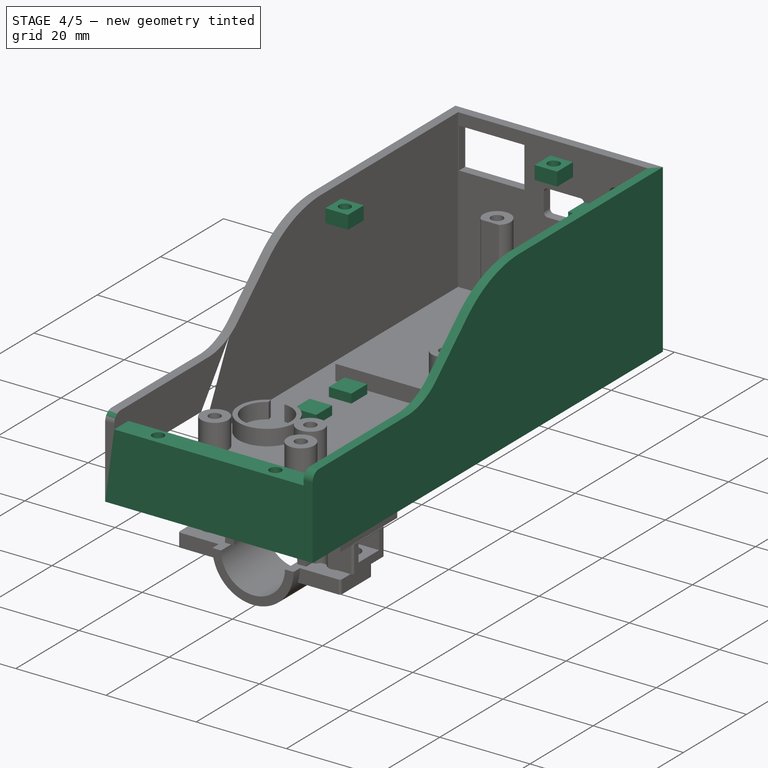
[diagram: stage 4 of 5 — iso view after this stage's code; geometry added in this stage tinted green]
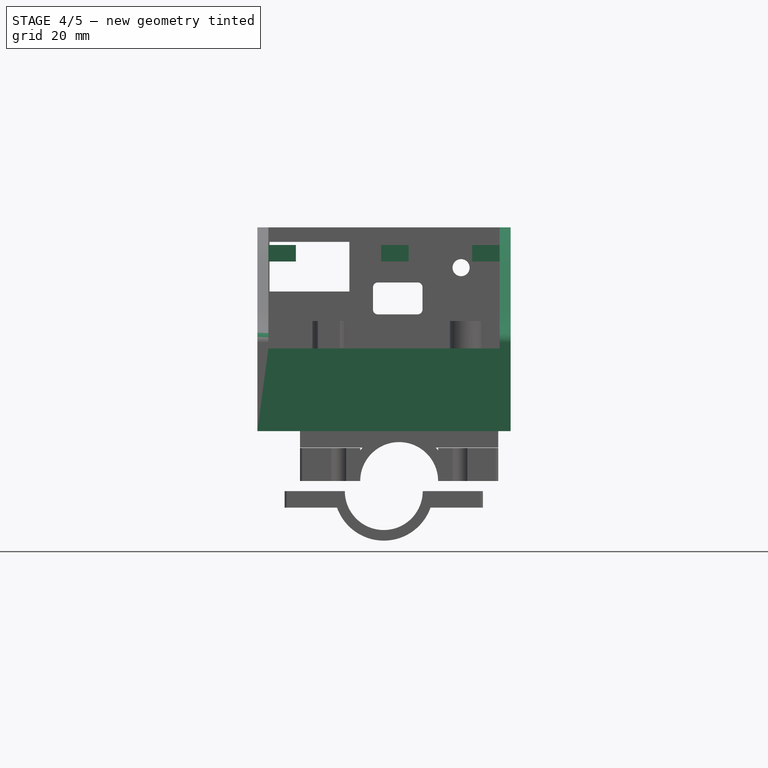
[diagram: stage 4 of 5 — front view after this stage's code; geometry added in this stage tinted green]
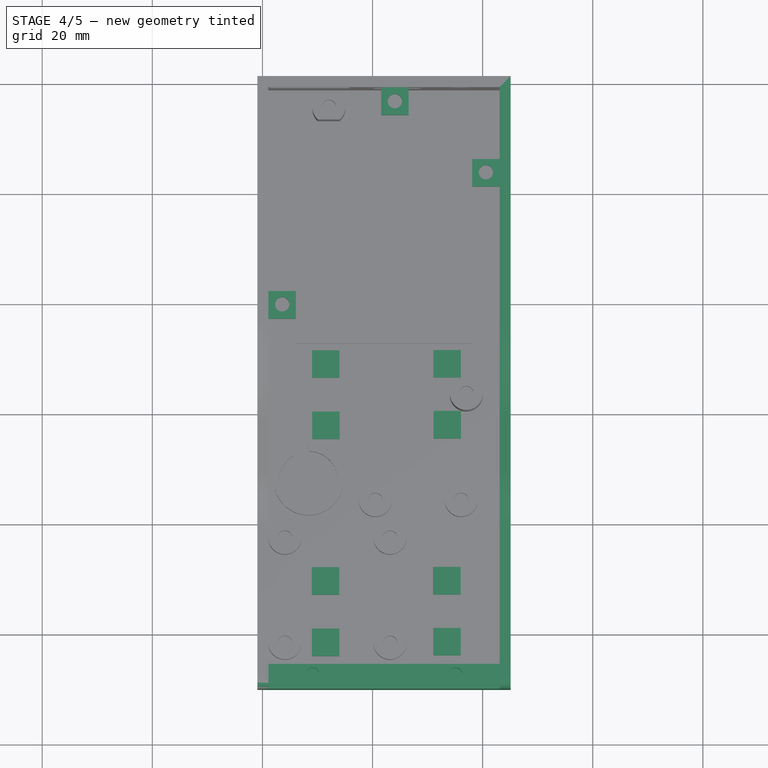
[diagram: stage 4 of 5 — top view after this stage's code; geometry added in this stage tinted green]
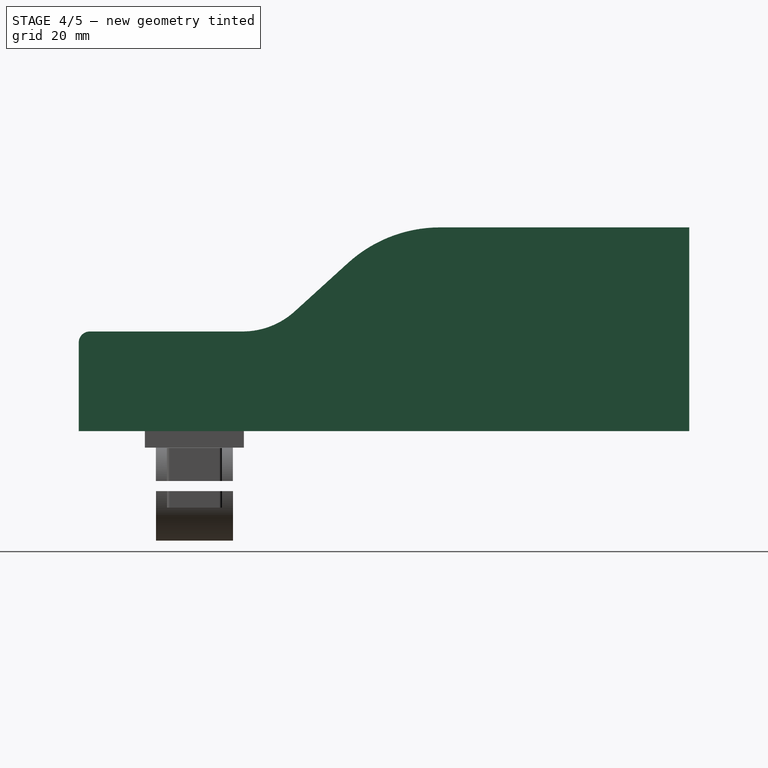
[diagram: stage 4 of 5 — right view after this stage's code; geometry added in this stage tinted green]
FEATURE [App::Part] Part002  label="MODELOS"
  Group = -> [touch_ref,acelerometro_ref,bateria,Part001]
  Origin = -> Origin023
FEATURE [Sketcher::SketchObject] Sketch014  label="sk_parede_costas"
  ArcFitTolerance = 1e-06
  AttachmentSupport = -> [Pad007]
  ExternalGeometry = -> [Sketch]
  FullyConstrained = false
  MakeInternals = false
  MapMode = 5
  Placement = pos=(0,-50.3848,-1.66e-14) rot=(1,0,0;1.5708rad)
  sketch-geometry (4):
    g0: LineSegment StartX=5.08076 StartY=-2 StartZ=0 EndX=5.08076 EndY=13.0169 EndZ=0
    g1: LineSegment StartX=5.08076 StartY=13.0169 StartZ=0 EndX=-40.9192 EndY=13.0169 EndZ=0
    g2: LineSegment StartX=-40.9192 StartY=13.0169 StartZ=0 EndX=-40.9192 EndY=-2 EndZ=0
    g3: LineSegment StartX=-40.9192 StartY=-2 StartZ=0 EndX=5.08076 EndY=-2 EndZ=0
  constraints (9):
    c: Vertical(g0)
    c: Coincident(g0,g1)
    c: Horizontal(g1)
    c: Coincident(g1,g2)
    c: Vertical(g2)
    c: Coincident(g2,g3)
    c: Coincident(g3,g0)
    c: Vertical(g2,g-3)
    c: Vertical(g-4,g0)
FEATURE [PartDesign::Pad] Pad011  label="PAREDE_COSTA"
  BaseFeature = -> Pad007
  Direction = (0,-1,2e-16)
  Length = 4.5
  Length2 = 10
  Profile = -> Sketch014
  ReferenceAxis = -> Sketch014 [N_Axis]
  Refine = true
  Reversed = true
  Suppressed = false
  Type = 0
FEATURE [Sketcher::SketchObject] Sketch016  label="sk_parede_right"
  ArcFitTolerance = 1e-06
  AttachmentSupport = -> [Pad011]
  FullyConstrained = false
  MakeInternals = false
  MapMode = 5
  Placement = pos=(5.08076,0,0) rot=(0.57735,0.57735,0.57735;2.0944rad)
  sketch-geometry (11):
    g0: LineSegment StartX=60.5 StartY=35 StartZ=0 EndX=15.2438 EndY=35 EndZ=0
    g1: LineSegment StartX=-1.48004 StartY=28.5376 StartZ=0 EndX=-11.1452 EndY=19.757 EndZ=0
    g2: LineSegment StartX=-20.6272 StartY=16.093 StartZ=0 EndX=-50.3848 EndY=16.093 EndZ=0
    g3: LineSegment StartX=-50.3848 StartY=16.093 StartZ=0 EndX=-50.3848 EndY=-2 EndZ=0
    g4: LineSegment StartX=-50.3848 StartY=-2 StartZ=0 EndX=60.5 EndY=-2 EndZ=0
    g5: LineSegment StartX=60.5 StartY=-2 StartZ=0 EndX=60.5 EndY=35 EndZ=0
    g6: ArcOfCircle CenterX=15.2438 CenterY=10.1291 CenterZ=0 NormalX=0 NormalY=0 NormalZ=1 AngleXU=0 Radius=24.8709 StartAngle=1.5708 EndAngle=2.30828
    g7: GeomPoint [constr] X=5.6333 Y=35 Z=0
    g8: ArcOfCircle CenterX=-20.6272 CenterY=30.1942 CenterZ=0 NormalX=0 NormalY=0 NormalZ=1 AngleXU=0 Radius=14.1012 StartAngle=4.71239 EndAngle=5.44987
    g9: GeomPoint [constr] X=-15.1783 Y=16.093 Z=0
    g10: GeomPoint [constr] X=-50.3848 Y=16.093 Z=0
  constraints (17):
    c: Horizontal(g0)
    c: Horizontal(g2)
    c: Vertical(g3)
    c: Coincident(g3,g4)
    c: Coincident(g4,g5)
    c: Coincident(g5,g0)
    c: PointOnObject(g7,g0)
    c: PointOnObject(g7,g1)
    c: Tangent(g0,g6) = -1.5708
    c: Tangent(g1,g6) = -1.5708
    c: PointOnObject(g9,g1)
    c: PointOnObject(g9,g2)
    c: Tangent(g1,g8) = 1.5708
    c: Tangent(g2,g8) = 1.5708
    c: PointOnObject(g10,g2)
    c: PointOnObject(g10,g3)
    c: Coincident(g2,g3)
FEATURE [PartDesign::Pad] Pad013  label="PAREDE_RIGHT"
  BaseFeature = -> Pad011
  Direction = (1,0,0)
  Length = 2
  Length2 = 10
  Profile = -> Sketch016
  ReferenceAxis = -> Sketch016 [N_Axis]
  Refine = true
  Reversed = true
  Suppressed = false
  Type = 0
FEATURE [PartDesign::Fillet] Fillet
  Base = -> Pad013 [Edge114]
  BaseFeature = -> Pad013
  Radius = 2
  Refine = true
  SupportTransform = false
  Suppressed = false
  UseAllEdges = false
FEATURE [PartDesign::Fillet] Fillet001
  Base = -> Fillet [Edge21]
  BaseFeature = -> Fillet
  Radius = 2
  Refine = true
  SupportTransform = false
  Suppressed = false
  UseAllEdges = false
FEATURE [Sketcher::SketchObject] Sketch018  label="sk_screw_left"
  ArcFitTolerance = 1e-06
  AttachmentSupport = -> [Fillet001]
  ExternalGeometry = -> [Fillet001]
  FullyConstrained = false
  MakeInternals = false
  MapMode = 5
  Placement = pos=(-38.9192,0,0) rot=(0.57735,0.57735,0.57735;2.0944rad)
  sketch-geometry (4):
    g0: LineSegment StartX=16.5 StartY=31.8 StartZ=0 EndX=16.5 EndY=28.8 EndZ=0
    g1: LineSegment StartX=16.5 StartY=28.8 StartZ=0 EndX=21.5 EndY=28.8 EndZ=0
    g2: LineSegment StartX=21.5 StartY=28.8 StartZ=0 EndX=21.5 EndY=31.8 EndZ=0
    g3: LineSegment StartX=21.5 StartY=31.8 StartZ=0 EndX=16.5 EndY=31.8 EndZ=0
  constraints (11):
    c: Coincident(g0,g1)
    c: Coincident(g1,g2)
    c: Coincident(g2,g3)
    c: Coincident(g3,g0)
    c: Vertical(g0)
    c: Vertical(g2)
    c: Horizontal(g1)
    c: Horizontal(g3)
    c: Distance(g0,g2) = 5
    c: Distance(g1,g3) = 3
    c: Distance(g3,g-3) = 3.2
FEATURE [PartDesign::Pad] Pad014  label="SCREW_LEFT"
  BaseFeature = -> Fillet001
  Direction = (1,0,0)
  Length = 5
  Length2 = 10
  Profile = -> Sketch018
  ReferenceAxis = -> Sketch018 [N_Axis]
  Refine = true
  Suppressed = false
  Type = 0
FEATURE [Sketcher::SketchObject] Sketch019  label="sk_screw_right"
  ArcFitTolerance = 1e-06
  AttachmentSupport = -> [Pad014]
  FullyConstrained = true
  MakeInternals = false
  MapMode = 5
  Placement = pos=(3.08076,0,0) rot=(0.57735,-0.57735,-0.57735;2.0944rad)
  sketch-geometry (4):
    g0: LineSegment StartX=-45.5 StartY=31.8 StartZ=0 EndX=-45.5 EndY=28.8 EndZ=0
    g1: LineSegment StartX=-45.5 StartY=28.8 StartZ=0 EndX=-40.5 EndY=28.8 EndZ=0
    g2: LineSegment StartX=-40.5 StartY=28.8 StartZ=0 EndX=-40.5 EndY=31.8 EndZ=0
    g3: LineSegment StartX=-40.5 StartY=31.8 StartZ=0 EndX=-45.5 EndY=31.8 EndZ=0
  constraints (12):
    c: Coincident(g0,g1)
    c: Coincident(g1,g2)
    c: Coincident(g2,g3)
    c: Coincident(g3,g0)
    c: Vertical(g0)
    c: Vertical(g2)
    c: Horizontal(g1)
    c: Horizontal(g3)
    c: Distance(g0,g2) = 5
    c: Distance(g1,g3) = 3
    c: Distance(g-3,g3) = 3.2
    c: Distance(g-4,g0) = 15
FEATURE [PartDesign::Pad] Pad015  label="SCREW_RIGHT"
  BaseFeature = -> Pad014
  Direction = (-1,0,0)
  Length = 5
  Length2 = 10
  Profile = -> Sketch019
  ReferenceAxis = -> Sketch019 [N_Axis]
  Refine = true
  Suppressed = false
  Type = 0
FEATURE [Sketcher::SketchObject] Sketch020
  ArcFitTolerance = 1e-06
  AttachmentSupport = -> [Pad015]
  ExternalGeometry = -> [Pad015]
  FullyConstrained = false
  MakeInternals = false
  MapMode = 5
  Placement = pos=(0,58.5,0) rot=(1,0,0;1.5708rad)
  sketch-geometry (4):
    g0: LineSegment StartX=-18.4458 StartY=31.8 StartZ=0 EndX=-18.4458 EndY=28.8 EndZ=0
    g1: LineSegment StartX=-18.4458 StartY=28.8 StartZ=0 EndX=-13.4458 EndY=28.8 EndZ=0
    g2: LineSegment StartX=-13.4458 StartY=28.8 StartZ=0 EndX=-13.4458 EndY=31.8 EndZ=0
    g3: LineSegment StartX=-13.4458 StartY=31.8 StartZ=0 EndX=-18.4458 EndY=31.8 EndZ=0
  constraints (11):
    c: Coincident(g0,g1)
    c: Coincident(g1,g2)
    c: Coincident(g2,g3)
    c: Coincident(g3,g0)
    c: Vertical(g0)
    c: Vertical(g2)
    c: Horizontal(g1)
    c: Horizontal(g3)
    c: Distance(g0,g2) = 5
    c: Distance(g1,g3) = 3
    c: Distance(g-3,g3) = 3.2
FEATURE [PartDesign::Pad] Pad016
  BaseFeature = -> Pad015
  Direction = (0,-1,2e-16)
  Length = 5
  Length2 = 10
  Profile = -> Sketch020
  ReferenceAxis = -> Sketch020 [N_Axis]
  Refine = true
  Suppressed = false
  Type = 0
FEATURE [Sketcher::SketchObject] Sketch021  label="sk_furos_screw"
  ArcFitTolerance = 1e-06
  AttachmentSupport = -> [Pad016]
  ExternalGeometry = -> [Pad016]
  FullyConstrained = false
  MakeInternals = false
  MapMode = 5
  Placement = pos=(0,0,31.8) rot=(0,0,1;0rad)
  sketch-geometry (4):
    g0: Circle CenterX=-36.4192 CenterY=19.1 CenterZ=0 NormalX=0 NormalY=0 NormalZ=1 AngleXU=0 Radius=1.3
    g1: Circle CenterX=-15.9458 CenterY=56 CenterZ=0 NormalX=0 NormalY=0 NormalZ=1 AngleXU=0 Radius=1.3
    g2: Circle CenterX=0.580761 CenterY=43.0843 CenterZ=0 NormalX=0 NormalY=0 NormalZ=1 AngleXU=0 Radius=1.3
    g3: Circle CenterX=-36.4192 CenterY=41.1 CenterZ=0 NormalX=0 NormalY=0 NormalZ=1 AngleXU=0 Radius=1.3
  constraints (11):
    c: Diameter(g0) = 2.6
    c: Diameter(g1) = 2.6
    c: Diameter(g2) = 2.6
    c: Diameter(g3) = 2.6
    c: Distance(g3,g-3) = 2.5
    c: Distance(g3,g-4) = 17.4
    c: Distance(g0,g-3) = 2.5
    c: DistanceY(g0,g3) = 22
    c: Distance(g1,g-4) = 2.5
    c: Distance(g1,g-6) = 2.5
    c: Distance(g2,g-5) = 2.5
FEATURE [PartDesign::Pocket] Pocket004  label="FUROS_SCREW"
  BaseFeature = -> Pad016
  Direction = (0,0,-1)
  Length = 3
  Length2 = 5
  Profile = -> Sketch021
  ReferenceAxis = -> Sketch021 [N_Axis]
  Refine = true
  Suppressed = false
  Type = 0
FEATURE [Sketcher::SketchObject] Sketch023
  ArcFitTolerance = 1e-06
  AttachmentSupport = -> [Pocket004]
  ExternalGeometry = -> [Pocket004]
  FullyConstrained = true
  MakeInternals = false
  MapMode = 5
  Placement = pos=(0,2.9e-15,13.0169) rot=(0,0,1;0rad)
  sketch-geometry (2):
    g0: Circle CenterX=-4.91924 CenterY=-47.8848 CenterZ=0 NormalX=0 NormalY=0 NormalZ=1 AngleXU=0 Radius=1.3
    g1: Circle CenterX=-30.9192 CenterY=-47.8848 CenterZ=0 NormalX=0 NormalY=0 NormalZ=1 AngleXU=0 Radius=1.3
  constraints (6):
    c: Diameter(g0) = 2.6
    c: Diameter(g1) = 2.6
    c: Distance(g1,g-3) = 8
    c: Distance(g0,g-4) = 8
    c: Distance(g1,g-5) = 2
    c: Horizontal(g0,g1)
FEATURE [PartDesign::Pocket] Pocket005
  BaseFeature = -> Pocket004
  Direction = (0,0,-1)
  Length = 4
  Length2 = 5
  Profile = -> Sketch023
  ReferenceAxis = -> Sketch023 [N_Axis]
  Refine = true
  Suppressed = false
  Type = 0
FEATURE [PartDesign::Pad] Pad031
  BaseFeature = -> Pocket005
  Direction = (0,0,1)
  Length = 2
  Length2 = 10
  Profile = -> Sketch044
  ReferenceAxis = -> Sketch044 [N_Axis]
  Refine = true
  Suppressed = false
  Type = 0
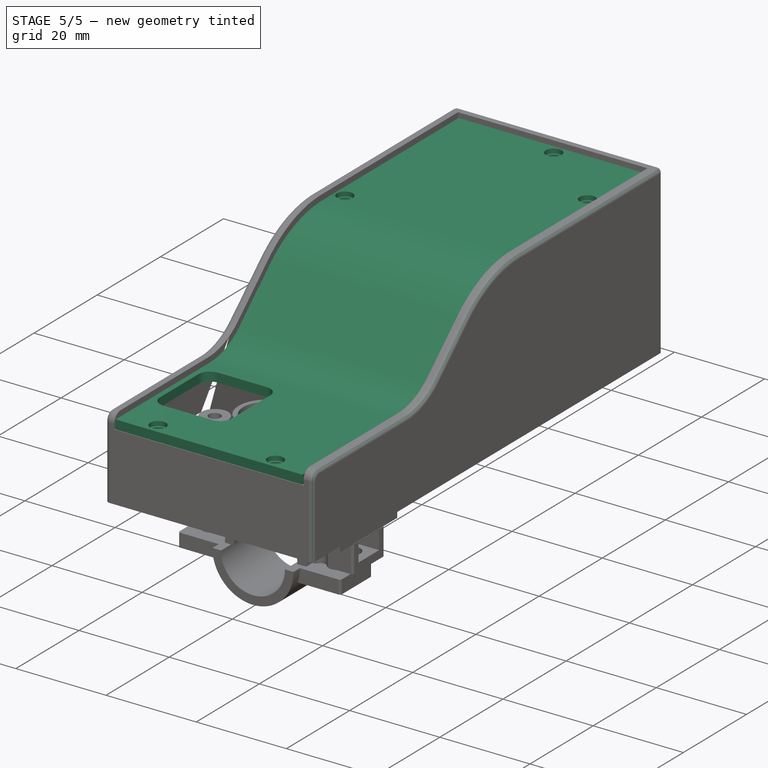
[diagram: stage 5 of 5 — iso view after this stage's code; geometry added in this stage tinted green]
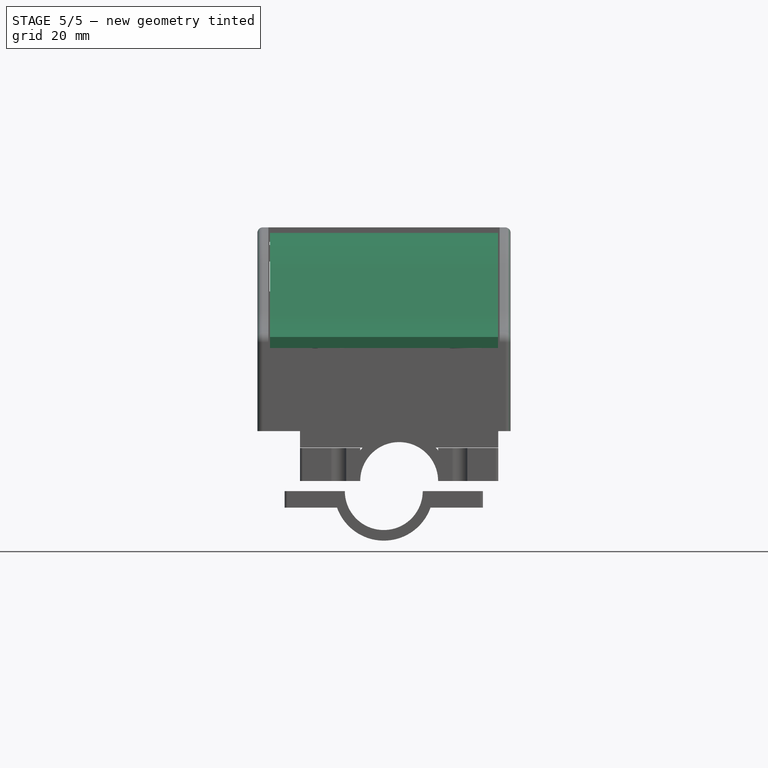
[diagram: stage 5 of 5 — front view after this stage's code; geometry added in this stage tinted green]
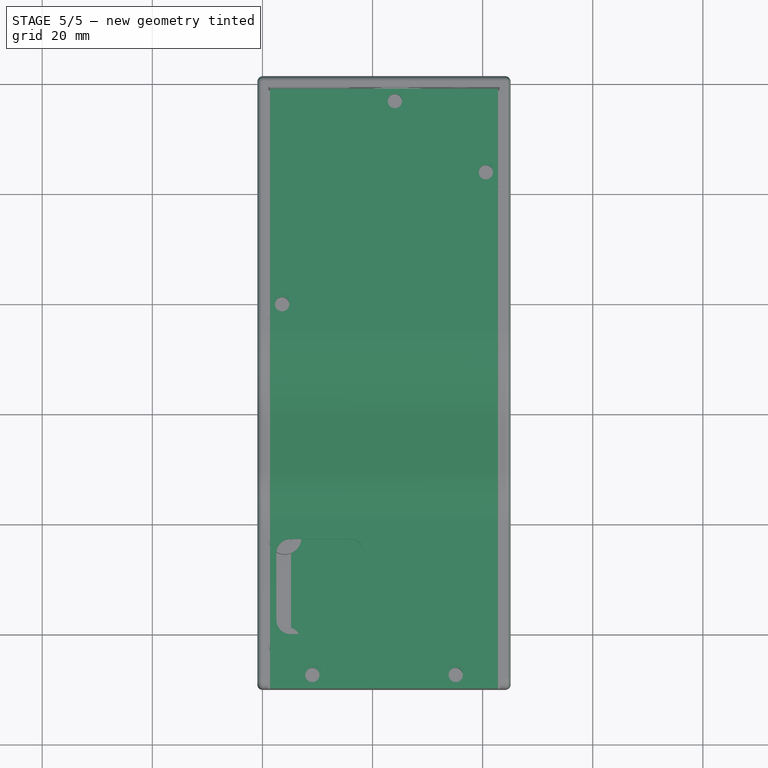
[diagram: stage 5 of 5 — top view after this stage's code; geometry added in this stage tinted green]
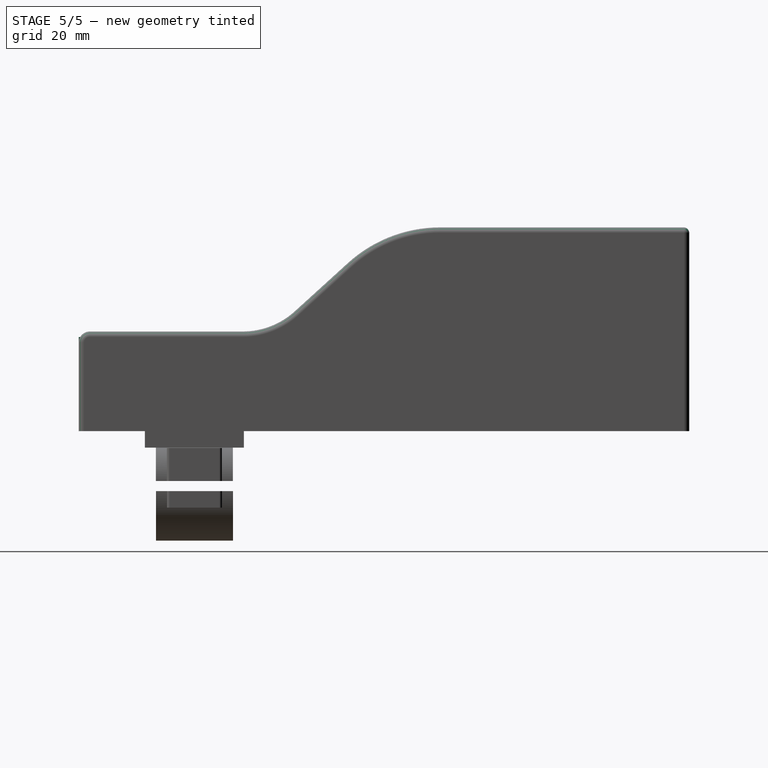
[diagram: stage 5 of 5 — right view after this stage's code; geometry added in this stage tinted green]
FEATURE [PartDesign::ShapeBinder] CopyPocket005
  TraceSupport = false
FEATURE [Sketcher::SketchObject] Sketch025
  ArcFitTolerance = 1e-06
  AttachmentSupport = -> [CopyPocket005]
  FullyConstrained = false
  MakeInternals = false
  MapMode = 5
  sketch-geometry (4):
    g0: LineSegment StartX=-34.8111 StartY=-19.8888 StartZ=0 EndX=-34.8111 EndY=-43.959 EndZ=0
    g1: LineSegment StartX=-34.8111 StartY=-43.959 StartZ=0 EndX=-10.946 EndY=-43.959 EndZ=0
    g2: LineSegment StartX=-10.946 StartY=-43.959 StartZ=0 EndX=-10.946 EndY=-19.8888 EndZ=0
    g3: LineSegment StartX=-10.946 StartY=-19.8888 StartZ=0 EndX=-34.8111 EndY=-19.8888 EndZ=0
  constraints (8):
    c: Coincident(g0,g1)
    c: Coincident(g1,g2)
    c: Coincident(g2,g3)
    c: Coincident(g3,g0)
    c: Vertical(g0)
    c: Vertical(g2)
    c: Horizontal(g1)
    c: Horizontal(g3)
FEATURE [PartDesign::Pad] Pad017
  Direction = (0,0,1)
  Length = 5
  Length2 = 10
  Profile = -> Sketch025
  ReferenceAxis = -> Sketch025 [N_Axis]
  Refine = true
  Suppressed = false
  Type = 0
FEATURE [Sketcher::SketchObject] Sketch045
  ArcFitTolerance = 1e-06
  AttachmentSupport = -> [Pad031]
  ExternalGeometry = -> [Pad031]
  FullyConstrained = false
  MakeInternals = false
  MapMode = 5
  Placement = pos=(0,0,2) rot=(0,0,1;0rad)
  sketch-geometry (8):
    g0: Circle CenterX=-28.49 CenterY=-41.6406 CenterZ=0 NormalX=0 NormalY=0 NormalZ=1 AngleXU=0 Radius=1.3
    g1: Circle CenterX=-28.49 CenterY=-30.6341 CenterZ=0 NormalX=0 NormalY=0 NormalZ=1 AngleXU=0 Radius=1.3
    g2: Circle CenterX=-6.5 CenterY=-30.6397 CenterZ=0 NormalX=0 NormalY=0 NormalZ=1 AngleXU=0 Radius=1.3
    g3: Circle CenterX=-6.49 CenterY=-41.6302 CenterZ=0 NormalX=0 NormalY=0 NormalZ=1 AngleXU=0 Radius=1.3
    g4: Circle CenterX=-28.49 CenterY=-2.24591 CenterZ=0 NormalX=0 NormalY=0 NormalZ=1 AngleXU=0 Radius=1.3
    g5: Circle CenterX=-28.49 CenterY=8.76061 CenterZ=0 NormalX=0 NormalY=0 NormalZ=1 AngleXU=0 Radius=1.3
    g6: Circle CenterX=-6.5 CenterY=8.75506 CenterZ=0 NormalX=0 NormalY=0 NormalZ=1 AngleXU=0 Radius=1.3
    g7: Circle CenterX=-6.49 CenterY=-2.23545 CenterZ=0 NormalX=0 NormalY=0 NormalZ=1 AngleXU=0 Radius=1.3
  constraints (16):
    c: Diameter(g0) = 2.6
    c: Diameter(g1) = 2.6
    c: Diameter(g2) = 2.6
    c: Diameter(g3) = 2.6
    c: Diameter(g4) = 2.6
    c: Diameter(g5) = 2.6
    c: Diameter(g6) = 2.6
    c: Diameter(g7) = 2.6
    c: Distance(g1,g2) = 19.39
    c: Distance(g0,g3) = 19.4
    c: Distance(g1,g-2) = 27.19
    c: Distance(g0,g-2) = 27.19
    c: Distance(g5,g6) = 19.39
    c: Distance(g4,g7) = 19.4
    c: Distance(g5,g-2) = 27.19
    c: Distance(g4,g-2) = 27.19
FEATURE [PartDesign::Pocket] Pocket007
  BaseFeature = -> Pad031
  Direction = (0,0,-1)
  Length = 5
  Length2 = 5
  Profile = -> Sketch045
  ReferenceAxis = -> Sketch045 [N_Axis]
  Refine = true
  Suppressed = false
  Type = 1
FEATURE [PartDesign::ShapeBinder] CopyPocket007
  TraceSupport = false
FEATURE [Sketcher::SketchObject] Sketch063
  ArcFitTolerance = 1e-06
  AttachmentSupport = -> [CopyPocket007]
  FullyConstrained = false
  MakeInternals = false
  MapMode = 5
  Placement = pos=(-38.9192,0,0) rot=(0.57735,0.57735,0.57735;2.0944rad)
  sketch-geometry (18):
    g0: LineSegment StartX=58.2438 StartY=34 StartZ=0 EndX=15.2438 EndY=34 EndZ=0
    g1: LineSegment StartX=-1.48003 StartY=27.5376 StartZ=0 EndX=-11.1452 EndY=18.757 EndZ=0
    g2: LineSegment StartX=-20.6272 StartY=15.093 StartZ=0 EndX=-50.3848 EndY=15.093 EndZ=0
    g3: ArcOfCircle CenterX=15.2438 CenterY=9.12915 CenterZ=0 NormalX=0 NormalY=0 NormalZ=1 AngleXU=0 Radius=24.8708 StartAngle=1.5708 EndAngle=2.30828
    g4: GeomPoint [constr] X=5.63331 Y=34 Z=0
    g5: ArcOfCircle CenterX=-20.6272 CenterY=29.1942 CenterZ=0 NormalX=0 NormalY=0 NormalZ=1 AngleXU=0 Radius=14.1012 StartAngle=4.71239 EndAngle=5.44987
    g6: GeomPoint [constr] X=-15.1783 Y=15.093 Z=0
    g7: GeomPoint [constr] X=-50.3848 Y=15.093 Z=0
    g8: LineSegment StartX=58.2438 StartY=32 StartZ=0 EndX=15.2438 EndY=32 EndZ=0
    g9: LineSegment StartX=-1.48002 StartY=25.5376 StartZ=0 EndX=-11.1452 EndY=16.757 EndZ=0
    g10: LineSegment StartX=-20.6272 StartY=13.093 StartZ=0 EndX=-50.3848 EndY=13.093 EndZ=0
    g11: ArcOfCircle CenterX=15.2438 CenterY=7.12915 CenterZ=0 NormalX=0 NormalY=0 NormalZ=1 AngleXU=0 Radius=24.8708 StartAngle=1.5708 EndAngle=2.30828
    g12: GeomPoint [constr] X=5.63331 Y=32 Z=0
    g13: ArcOfCircle CenterX=-20.6272 CenterY=27.1942 CenterZ=0 NormalX=0 NormalY=0 NormalZ=1 AngleXU=0 Radius=14.1012 StartAngle=4.71239 EndAngle=5.44987
    g14: GeomPoint [constr] X=-15.1783 Y=13.093 Z=0
    g15: GeomPoint [constr] X=-50.3848 Y=13.093 Z=0
    g16: LineSegment StartX=-50.3848 StartY=15.093 StartZ=0 EndX=-50.3848 EndY=13.093 EndZ=0
    g17: LineSegment StartX=58.2438 StartY=34 StartZ=0 EndX=58.2438 EndY=32 EndZ=0
  constraints (30):
    c: Horizontal(g0)
    c: Horizontal(g2)
    c: PointOnObject(g4,g0)
    c: PointOnObject(g4,g1)
    c: Tangent(g0,g3) = -1.5708
    c: Tangent(g1,g3) = -1.5708
    c: PointOnObject(g6,g1)
    c: PointOnObject(g6,g2)
    c: Tangent(g1,g5) = 1.5708
    c: Tangent(g2,g5) = 1.5708
    c: PointOnObject(g7,g2)
    c: DistanceX(g0,g0) = 43
    c: Horizontal(g8)
    c: Horizontal(g10)
    c: PointOnObject(g12,g8)
    c: PointOnObject(g12,g9)
    c: Tangent(g8,g11) = -1.5708
    c: Tangent(g9,g11) = -1.5708
    c: PointOnObject(g14,g9)
    c: PointOnObject(g14,g10)
    c: Tangent(g9,g13) = 1.5708
    c: Tangent(g10,g13) = 1.5708
    c: PointOnObject(g15,g10)
    c: DistanceX(g8,g8) = 43
    c: Coincident(g16,g2)
    c: Coincident(g16,g10)
    c: Vertical(g16)
    c: Coincident(g17,g0)
    c: Coincident(g17,g8)
    c: Vertical(g17)
FEATURE [PartDesign::Pad] Pad041
  Direction = (1,0,0)
  Length = 41.7
  Length2 = -0.3
  Profile = -> Sketch063
  ReferenceAxis = -> Sketch063 [N_Axis]
  Refine = true
  Suppressed = false
  Type = 4
FEATURE [Sketcher::SketchObject] Sketch064
  ArcFitTolerance = 1e-06
  AttachmentSupport = -> [Pad041]
  FullyConstrained = false
  MakeInternals = false
  MapMode = 5
  Placement = pos=(0,0,34) rot=(0,0,1;0rad)
  sketch-geometry (3):
    g0: Circle CenterX=-36.4232 CenterY=19.1051 CenterZ=0 NormalX=0 NormalY=0 NormalZ=1 AngleXU=0 Radius=1.3
    g1: Circle CenterX=0.57751 CenterY=43.0771 CenterZ=0 NormalX=0 NormalY=0 NormalZ=1 AngleXU=0 Radius=1.3
    g2: Circle CenterX=-15.946 CenterY=55.9964 CenterZ=0 NormalX=0 NormalY=0 NormalZ=1 AngleXU=0 Radius=1.3
  constraints (3):
    c: Diameter(g0) = 2.6
    c: Diameter(g1) = 2.6
    c: Diameter(g2) = 2.6
FEATURE [PartDesign::Hole] Hole006
  BaseFeature = -> Pad041
  CustomThreadClearance = 0
  Depth = 3
  DepthType = 0
  Diameter = 2.6
  DrillForDepth = false
  DrillPoint = 1
  DrillPointAngle = 118
  HoleCutCountersinkAngle = 90
  HoleCutCustomValues = false
  HoleCutDepth = 1
  HoleCutDiameter = 3.5
  HoleCutType = 1
  ModelThread = false
  Profile = -> Sketch064
  Refine = true
  Suppressed = false
  Tapered = false
  TaperedAngle = 90
  ThreadClass = 0
  ThreadDepth = 3
  ThreadDepthType = 0
  ThreadDirection = 0
  ThreadFit = 0
  ThreadSize = 0
  ThreadType = 0
  Threaded = false
  UseCustomThreadClearance = false
FEATURE [Sketcher::SketchObject] Sketch065
  ArcFitTolerance = 1e-06
  AttachmentSupport = -> [Hole006]
  FullyConstrained = false
  MakeInternals = false
  MapMode = 5
  Placement = pos=(0,0,15.093) rot=(0,0,1;0rad)
  sketch-geometry (12):
    g0: LineSegment StartX=-37.4589 StartY=-25.7933 StartZ=0 EndX=-37.4589 EndY=-37.9536 EndZ=0
    g1: LineSegment StartX=-34.9089 StartY=-40.5036 StartZ=0 EndX=-24.0891 EndY=-40.5036 EndZ=0
    g2: LineSegment StartX=-21.5391 StartY=-37.9536 StartZ=0 EndX=-21.5391 EndY=-25.7933 EndZ=0
    g3: LineSegment StartX=-24.0891 StartY=-23.2433 StartZ=0 EndX=-34.9089 EndY=-23.2433 EndZ=0
    g4: ArcOfCircle CenterX=-34.9089 CenterY=-25.7933 CenterZ=0 NormalX=0 NormalY=0 NormalZ=1 AngleXU=0 Radius=2.55 StartAngle=1.5708 EndAngle=3.14159
    g5: GeomPoint [constr] X=-37.4589 Y=-23.2433 Z=0
    g6: ArcOfCircle CenterX=-24.0891 CenterY=-25.7933 CenterZ=0 NormalX=0 NormalY=0 NormalZ=1 AngleXU=0 Radius=2.55 StartAngle=1e-16 EndAngle=1.5708
    g7: GeomPoint [constr] X=-21.5391 Y=-23.2433 Z=0
    g8: ArcOfCircle CenterX=-24.0891 CenterY=-37.9536 CenterZ=0 NormalX=0 NormalY=0 NormalZ=1 AngleXU=0 Radius=2.55 StartAngle=4.71239 EndAngle=6.28319
    g9: GeomPoint [constr] X=-21.5391 Y=-40.5036 Z=0
    g10: ArcOfCircle CenterX=-34.9089 CenterY=-37.9536 CenterZ=0 NormalX=0 NormalY=0 NormalZ=1 AngleXU=0 Radius=2.55 StartAngle=3.14159 EndAngle=4.71239
    g11: GeomPoint [constr] X=-37.4589 Y=-40.5036 Z=0
  constraints (24):
    c: Vertical(g0)
    c: Vertical(g2)
    c: Horizontal(g1)
    c: Horizontal(g3)
    c: PointOnObject(g5,g0)
    c: PointOnObject(g5,g3)
    c: Tangent(g0,g4) = -1.5708
    c: Tangent(g3,g4) = -1.5708
    c: PointOnObject(g7,g2)
    c: PointOnObject(g7,g3)
    c: Tangent(g2,g6) = -1.5708
    c: Tangent(g3,g6) = -1.5708
    c: PointOnObject(g9,g2)
    c: PointOnObject(g9,g1)
    c: Tangent(g2,g8) = -1.5708
    c: Tangent(g1,g8) = -1.5708
    c: PointOnObject(g11,g0)
    c: PointOnObject(g11,g1)
    c: Tangent(g0,g10) = -1.5708
    c: Tangent(g1,g10) = -1.5708
    c: Radius(g4) = 2.55
    c: Radius(g6) = 2.55
    c: Radius(g8) = 2.55
    c: Radius(g10) = 2.55
FEATURE [PartDesign::Pocket] Pocket012
  BaseFeature = -> Hole006
  Direction = (0,0,-1)
  Length = 3
  Length2 = 5
  Profile = -> Sketch065
  ReferenceAxis = -> Sketch065 [N_Axis]
  Refine = true
  Suppressed = false
  Type = 0
FEATURE [Sketcher::SketchObject] Sketch066
  ArcFitTolerance = 1e-06
  AttachmentSupport = -> [Pocket012]
  ExternalGeometry = -> [Pocket012]
  FullyConstrained = false
  MakeInternals = false
  MapMode = 5
  Placement = pos=(0,0,15.093) rot=(0,0,1;0rad)
  sketch-geometry (2):
    g0: Circle CenterX=-4.88849 CenterY=-47.914 CenterZ=0 NormalX=0 NormalY=0 NormalZ=1 AngleXU=0 Radius=1.3
    g1: Circle CenterX=-30.925 CenterY=-47.914 CenterZ=0 NormalX=0 NormalY=0 NormalZ=1 AngleXU=0 Radius=1.3
  constraints (3):
    c: Diameter(g0) = 2.6
    c: Diameter(g1) = 2.6
    c: Horizontal(g1,g0)
FEATURE [PartDesign::Hole] Hole007
  BaseFeature = -> Pocket012
  CustomThreadClearance = 0
  Depth = 4
  DepthType = 0
  Diameter = 2.6
  DrillForDepth = false
  DrillPoint = 1
  DrillPointAngle = 118
  HoleCutCountersinkAngle = 90
  HoleCutCustomValues = false
  HoleCutDepth = 1
  HoleCutDiameter = 3.5
  HoleCutType = 1
  ModelThread = false
  Profile = -> Sketch066
  Refine = true
  Suppressed = false
  Tapered = false
  TaperedAngle = 90
  ThreadClass = 0
  ThreadDepth = 4
  ThreadDepthType = 0
  ThreadDirection = 0
  ThreadFit = 0
  ThreadSize = 0
  ThreadType = 0
  Threaded = false
  UseCustomThreadClearance = false
FEATURE [PartDesign::Body] Body008  label="TAMPA_2"
  AllowCompound = false
  Group = -> [CopyPocket007,Sketch063,Pad041,Sketch064,Hole006,Sketch065,Pocket012,Sketch066,Hole007]
  Origin = -> Origin031
  Tip = -> Hole007
FEATURE [PartDesign::Fillet] Fillet008
  Base = -> Pocket007 [Edge44,Edge15]
  BaseFeature = -> Pocket007
  Radius = 1
  Refine = true
  SupportTransform = false
  Suppressed = false
  UseAllEdges = false
FEATURE [PartDesign::Fillet] Fillet009
  Base = -> Fillet008 [Edge36,Edge64,Edge66,Edge67,Edge65,Edge63,Edge27]
  BaseFeature = -> Fillet008
  Radius = 1
  Refine = true
  SupportTransform = false
  Suppressed = false
  UseAllEdges = false
FEATURE [PartDesign::Chamfer] Chamfer
  Angle = 45
  Base = -> Fillet009 [Edge285,Edge290]
  BaseFeature = -> Fillet009
  ChamferType = 0
  FlipDirection = false
  Refine = true
  Size = 1
  Size2 = 1
  SupportTransform = false
  Suppressed = false
  UseAllEdges = false
FEATURE [PartDesign::Chamfer] Chamfer001
  Angle = 45
  Base = -> Chamfer [Edge353,Edge357]
  BaseFeature = -> Chamfer
  ChamferType = 0
  FlipDirection = false
  Refine = true
  Size = 1
  Size2 = 1
  SupportTransform = false
  Suppressed = false
  UseAllEdges = false
FEATURE [PartDesign::Chamfer] Chamfer002
  Angle = 45
  Base = -> Chamfer001 [Edge317,Edge321]
  BaseFeature = -> Chamfer001
  ChamferType = 0
  FlipDirection = false
  Refine = true
  Size = 1
  Size2 = 1
  SupportTransform = false
  Suppressed = false
  UseAllEdges = false
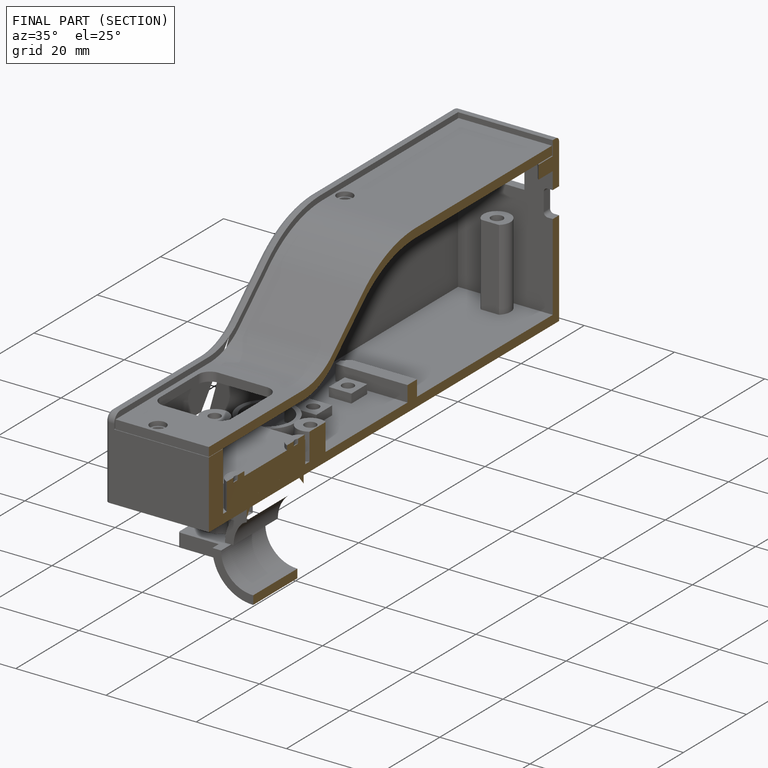
[diagram: finished part — half-section view (interior)]
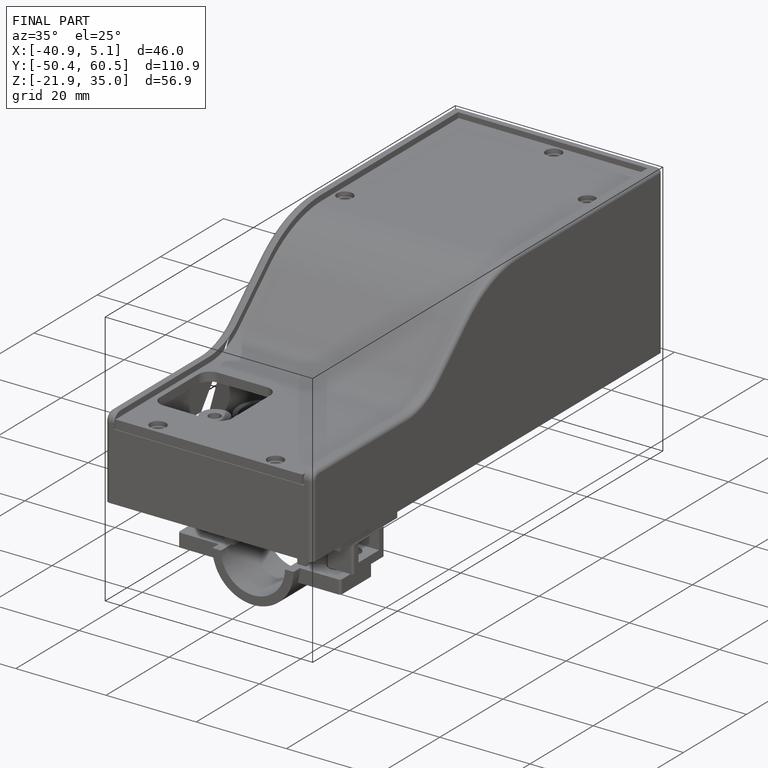
[diagram: finished part — iso view with bounding-box wireframe]
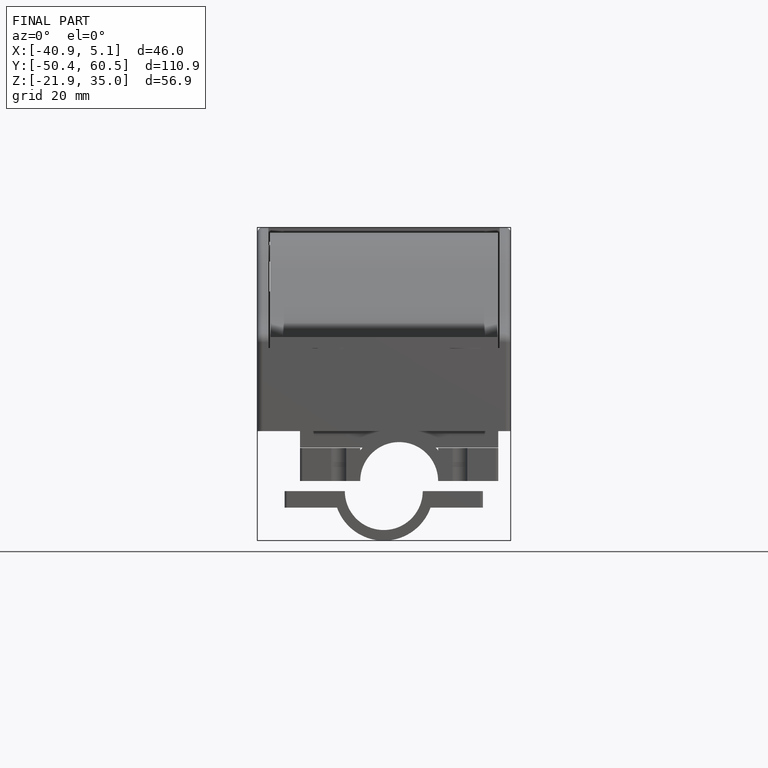
[diagram: finished part — front view with bounding-box wireframe]
